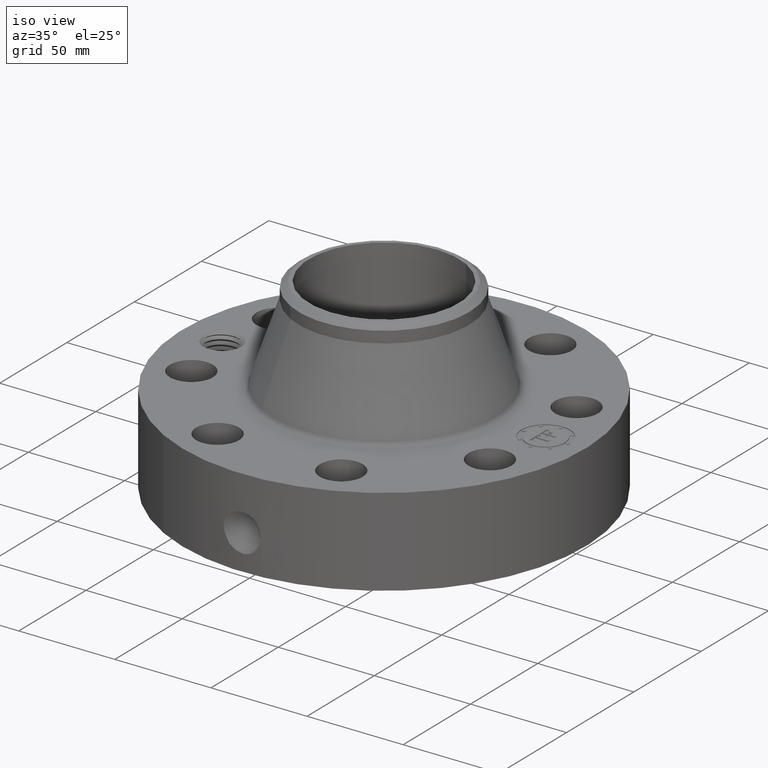
[diagram: clean part render]
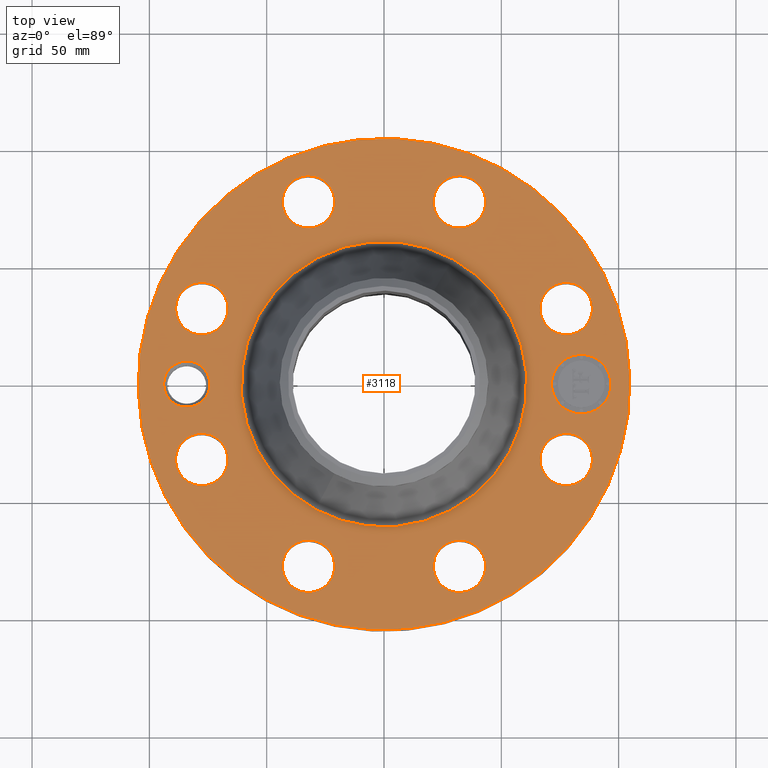
[diagram: tour spotlight — one face highlighted and labeled with its STEP entity id]
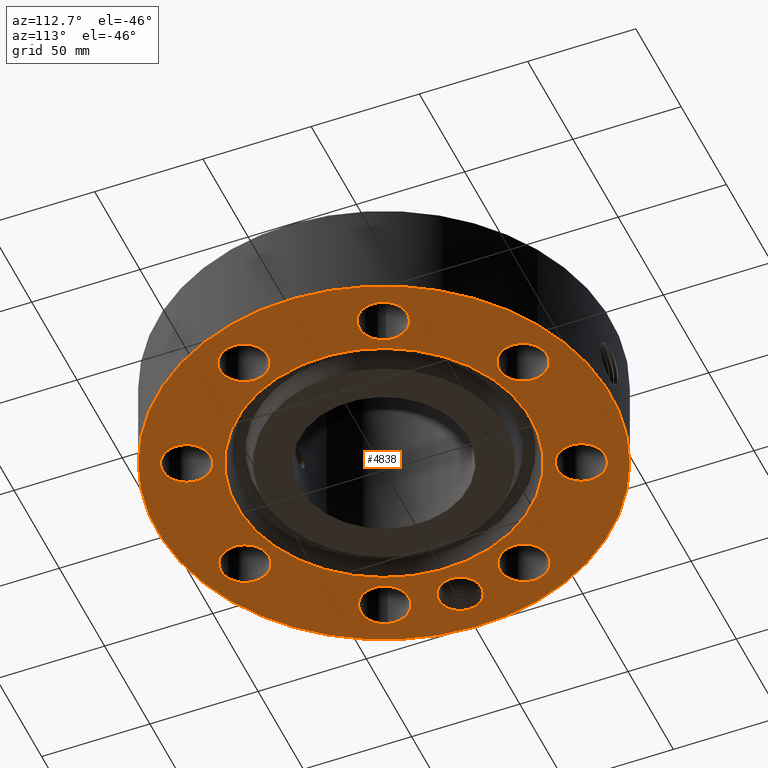
[diagram: tour spotlight — one face highlighted and labeled with its STEP entity id]
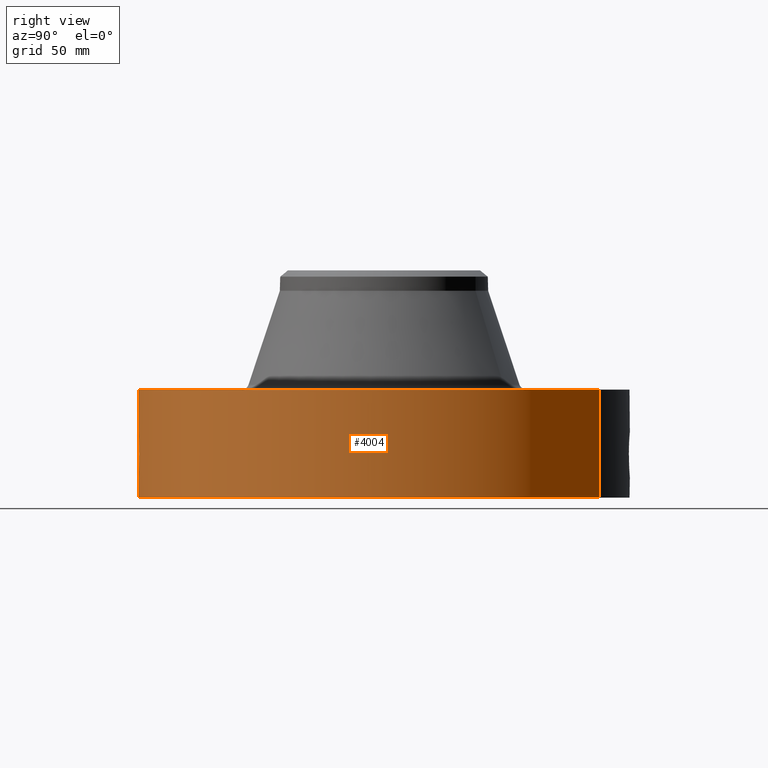
[diagram: tour spotlight — one face highlighted and labeled with its STEP entity id]
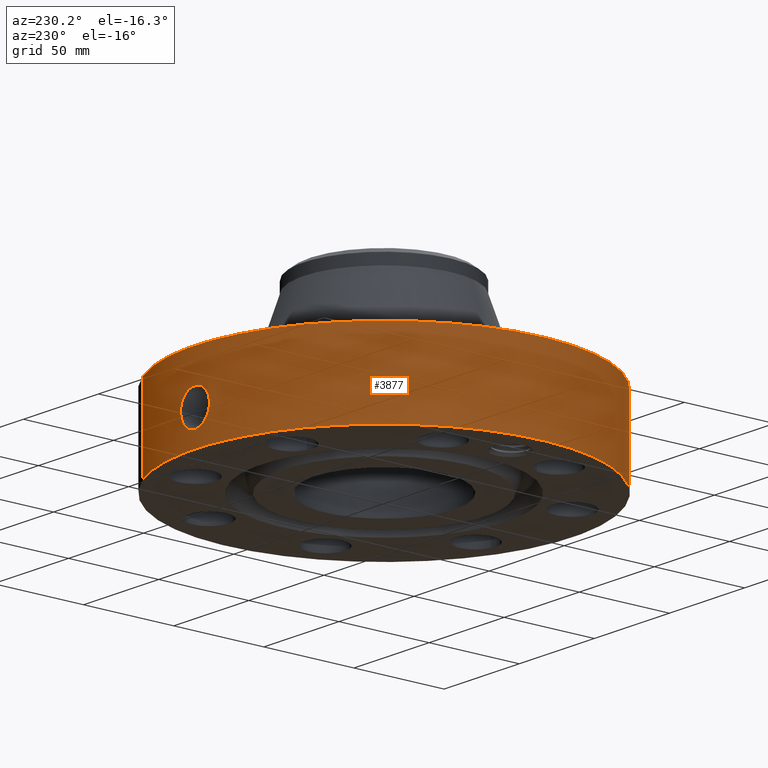
[diagram: tour spotlight — one face highlighted and labeled with its STEP entity id]
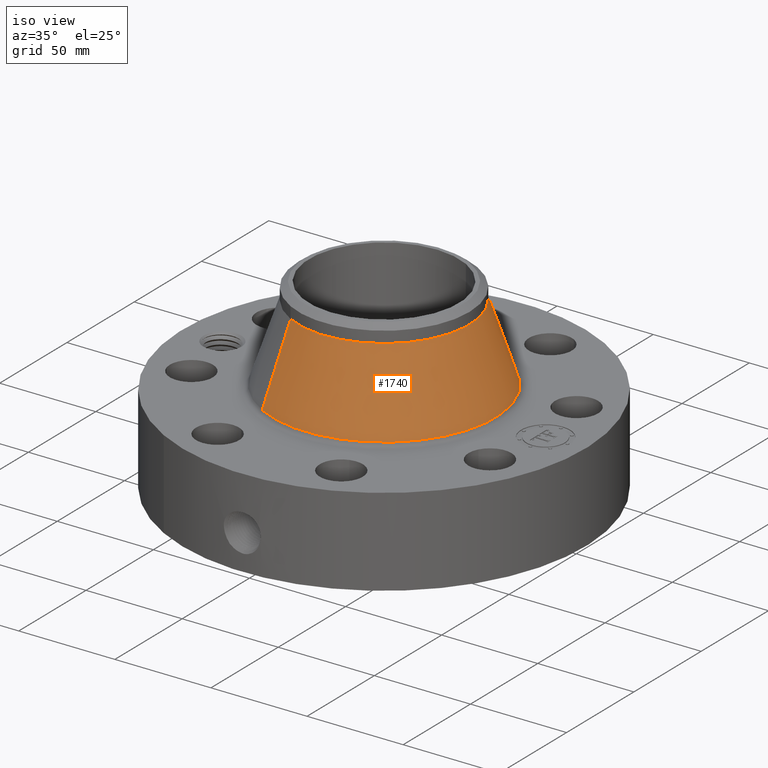
[diagram: tour spotlight — one face highlighted and labeled with its STEP entity id]
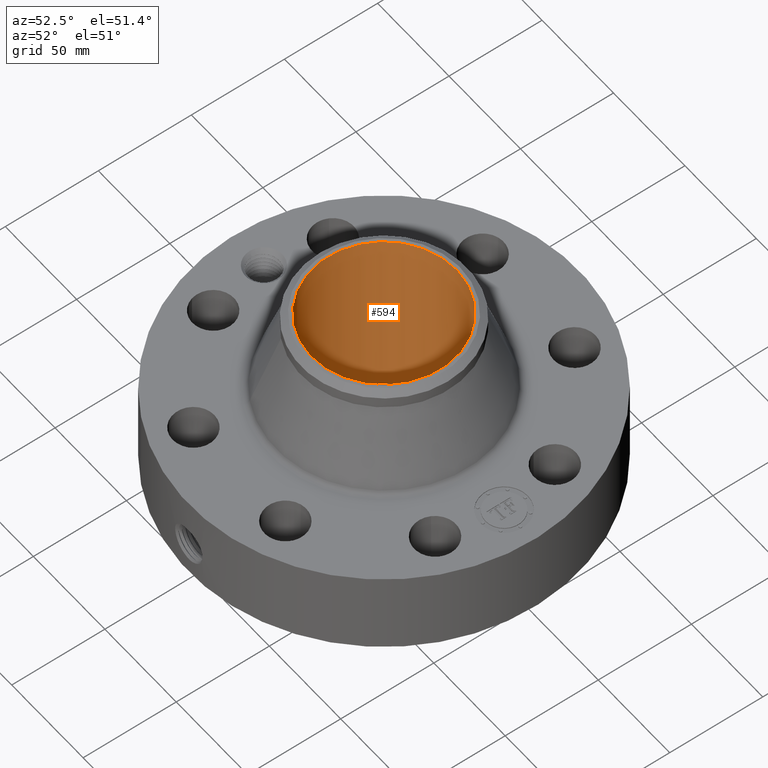
[diagram: tour spotlight — one face highlighted and labeled with its STEP entity id]
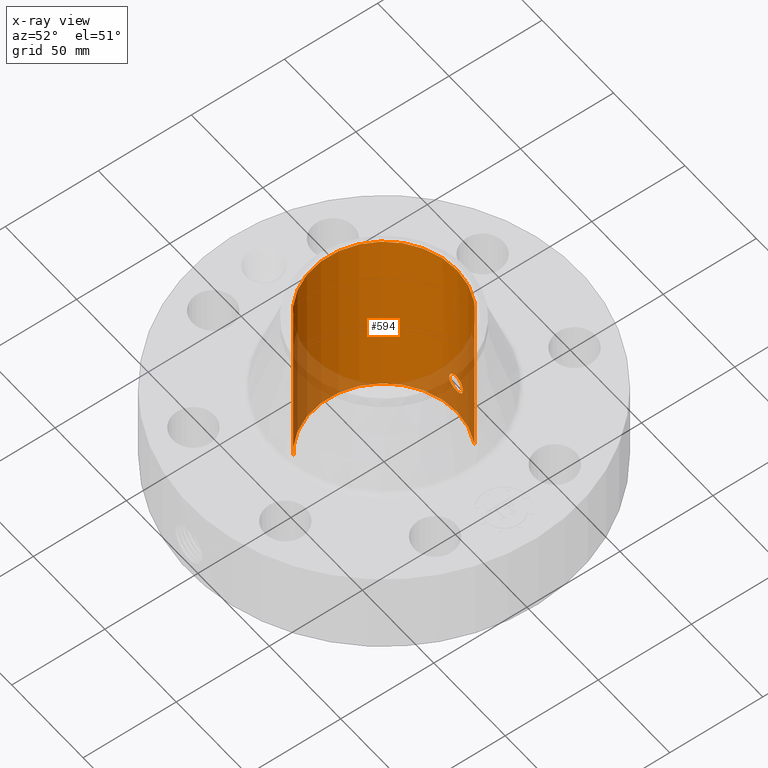
[diagram: x-ray of the same camera — body ghosted, this tour face saturated]
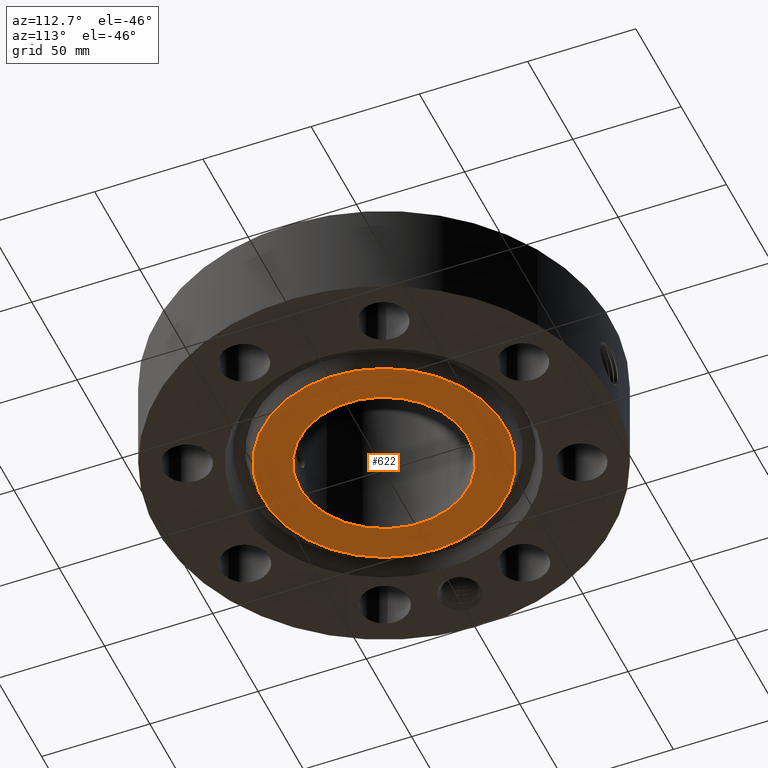
[diagram: tour spotlight — one face highlighted and labeled with its STEP entity id]
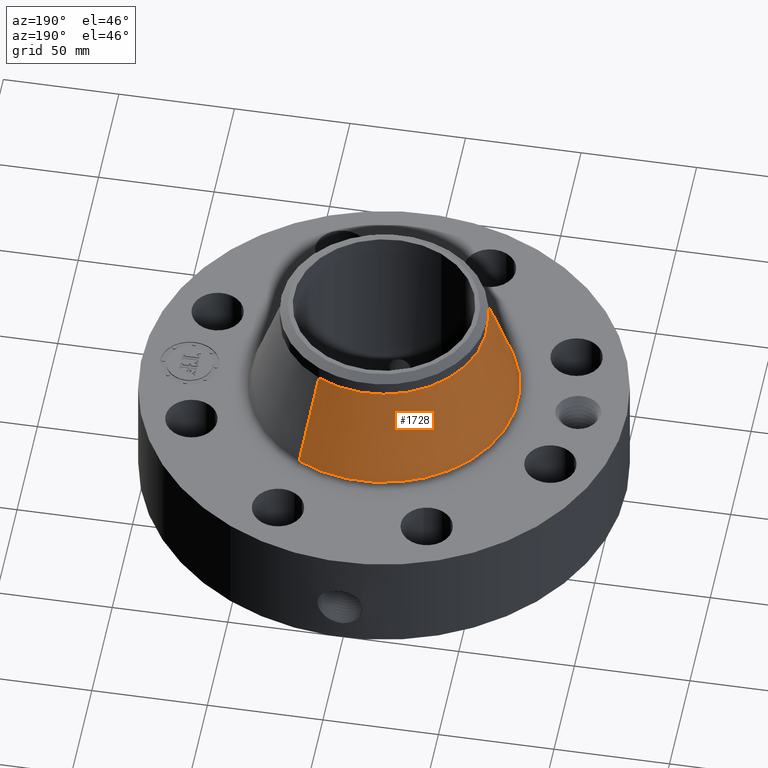
[diagram: tour spotlight — one face highlighted and labeled with its STEP entity id]
A machine part: a face-by-face anatomy tour. The part has 795 B-rep faces; the first image is the clean iso view, then the 8 largest visible faces are spotlighted one at a time (largest first), each with its STEP entity span.

Face 1 — top view, entity #3118. In plain terms, the highlighted planar face has unit normal (0, 0, -1).
Definition (entity closure, byte-faithful):
#2190=AXIS2_PLACEMENT_3D('Circle Axis2P3D',#2188,#2189,$) ;
#2216=AXIS2_PLACEMENT_3D('Circle Axis2P3D',#2214,#2215,$) ;
#2914=AXIS2_PLACEMENT_3D('Plane Axis2P3D',#2911,#2912,#2913) ;
#2918=AXIS2_PLACEMENT_3D('Circle Axis2P3D',#2916,#2917,$) ;
#2927=AXIS2_PLACEMENT_3D('Circle Axis2P3D',#2925,#2926,$) ;
#2936=AXIS2_PLACEMENT_3D('Circle Axis2P3D',#2934,#2935,$) ;
#2945=AXIS2_PLACEMENT_3D('Circle Axis2P3D',#2943,#2944,$) ;
#2954=AXIS2_PLACEMENT_3D('Circle Axis2P3D',#2952,#2953,$) ;
#2963=AXIS2_PLACEMENT_3D('Circle Axis2P3D',#2961,#2962,$) ;
#2976=AXIS2_PLACEMENT_3D('Circle Axis2P3D',#2974,#2975,$) ;
#2985=AXIS2_PLACEMENT_3D('Circle Axis2P3D',#2983,#2984,$) ;
#2994=AXIS2_PLACEMENT_3D('Circle Axis2P3D',#2992,#2993,$) ;
#3003=AXIS2_PLACEMENT_3D('Circle Axis2P3D',#3001,#3002,$) ;
#3012=AXIS2_PLACEMENT_3D('Circle Axis2P3D',#3010,#3011,$) ;
#3021=AXIS2_PLACEMENT_3D('Circle Axis2P3D',#3019,#3020,$) ;
#3030=AXIS2_PLACEMENT_3D('Circle Axis2P3D',#3028,#3029,$) ;
#3039=AXIS2_PLACEMENT_3D('Circle Axis2P3D',#3037,#3038,$) ;
#3048=AXIS2_PLACEMENT_3D('Circle Axis2P3D',#3046,#3047,$) ;
#3057=AXIS2_PLACEMENT_3D('Circle Axis2P3D',#3055,#3056,$) ;
#3066=AXIS2_PLACEMENT_3D('Circle Axis2P3D',#3064,#3065,$) ;
#3075=AXIS2_PLACEMENT_3D('Circle Axis2P3D',#3073,#3074,$) ;
#3084=AXIS2_PLACEMENT_3D('Circle Axis2P3D',#3082,#3083,$) ;
#3093=AXIS2_PLACEMENT_3D('Circle Axis2P3D',#3091,#3092,$) ;
#3102=AXIS2_PLACEMENT_3D('Circle Axis2P3D',#3100,#3101,$) ;
#3111=AXIS2_PLACEMENT_3D('Circle Axis2P3D',#3109,#3110,$) ;
#2188=CARTESIAN_POINT('Axis2P3D Location',(0.,0.,1.81200000001)) ;
#2192=CARTESIAN_POINT('Vertex',(-1.14876916276,-2.10280784752,1.81200000001)) ;
#2194=CARTESIAN_POINT('Vertex',(1.14876916276,2.10280784752,1.81200000001)) ;
#2214=CARTESIAN_POINT('Axis2P3D Location',(0.,0.,1.81200000001)) ;
#2911=CARTESIAN_POINT('Axis2P3D Location',(0.,4.12500000002,1.81200000001)) ;
#2916=CARTESIAN_POINT('Axis2P3D Location',(0.,0.,1.81200000001)) ;
#2920=CARTESIAN_POINT('Vertex',(1.97763034675,3.62002806781,1.81200000001)) ;
#2922=CARTESIAN_POINT('Vertex',(-1.97763034675,-3.62002806781,1.81200000001)) ;
#2925=CARTESIAN_POINT('Axis2P3D Location',(0.,0.,1.81200000001)) ;
#2934=CARTESIAN_POINT('Axis2P3D Location',(-3.31000000001,2.79741234551E-015,1.81200000001)) ;
#2938=CARTESIAN_POINT('Vertex',(-3.65063367141,0.18608902281,1.81200000001)) ;
#2940=CARTESIAN_POINT('Vertex',(-2.96936632861,-0.18608902281,1.81200000001)) ;
#2943=CARTESIAN_POINT('Axis2P3D Location',(-3.31000000001,2.79741234551E-015,1.81200000001)) ;
#2952=CARTESIAN_POINT('Axis2P3D Location',(3.05804125262,-1.26668216113,1.81200000001)) ;
#2956=CARTESIAN_POINT('Vertex',(2.67190492539,-1.05573492415,1.81200000001)) ;
#2958=CARTESIAN_POINT('Vertex',(3.44417757986,-1.47762939812,1.81200000001)) ;
#2961=CARTESIAN_POINT('Axis2P3D Location',(3.05804125262,-1.26668216113,1.81200000001)) ;
#2974=CARTESIAN_POINT('Axis2P3D Location',(1.26668216113,-3.05804125262,1.81200000001)) ;
#2978=CARTESIAN_POINT('Vertex',(1.39055955484,-3.48024308982,1.81200000001)) ;
#2980=CARTESIAN_POINT('Vertex',(1.14280476743,-2.63583941543,1.81200000001)) ;
#2983=CARTESIAN_POINT('Axis2P3D Location',(1.26668216113,-3.05804125262,1.81200000001)) ;
#2992=CARTESIAN_POINT('Axis2P3D Location',(-1.26668216113,-3.05804125262,1.81200000001)) ;
#2996=CARTESIAN_POINT('Vertex',(-1.47762939812,-3.44417757986,1.81200000001)) ;
#2998=CARTESIAN_POINT('Vertex',(-1.05573492415,-2.67190492539,1.81200000001)) ;
#3001=CARTESIAN_POINT('Axis2P3D Location',(-1.26668216113,-3.05804125262,1.81200000001)) ;
#3010=CARTESIAN_POINT('Axis2P3D Location',(-3.05804125262,-1.26668216113,1.81200000001)) ;
#3014=CARTESIAN_POINT('Vertex',(-3.48024308982,-1.39055955484,1.81200000001)) ;
#3016=CARTESIAN_POINT('Vertex',(-2.63583941543,-1.14280476743,1.81200000001)) ;
#3019=CARTESIAN_POINT('Axis2P3D Location',(-3.05804125262,-1.26668216113,1.81200000001)) ;
#3028=CARTESIAN_POINT('Axis2P3D Location',(-3.05804125262,1.26668216113,1.81200000001)) ;
#3032=CARTESIAN_POINT('Vertex',(-3.44417757986,1.47762939812,1.81200000001)) ;
#3034=CARTESIAN_POINT('Vertex',(-2.67190492539,1.05573492415,1.81200000001)) ;
#3037=CARTESIAN_POINT('Axis2P3D Location',(-3.05804125262,1.26668216113,1.81200000001)) ;
#3046=CARTESIAN_POINT('Axis2P3D Location',(-1.26668216113,3.05804125262,1.81200000001)) ;
#3050=CARTESIAN_POINT('Vertex',(-1.39055955484,3.48024308982,1.81200000001)) ;
#3052=CARTESIAN_POINT('Vertex',(-1.14280476743,2.63583941543,1.81200000001)) ;
#3055=CARTESIAN_POINT('Axis2P3D Location',(-1.26668216113,3.05804125262,1.81200000001)) ;
#3064=CARTESIAN_POINT('Axis2P3D Location',(1.26668216113,3.05804125262,1.81200000001)) ;
#3068=CARTESIAN_POINT('Vertex',(1.47762939812,3.44417757986,1.81200000001)) ;
#3070=CARTESIAN_POINT('Vertex',(1.05573492415,2.67190492539,1.81200000001)) ;
#3073=CARTESIAN_POINT('Axis2P3D Location',(1.26668216113,3.05804125262,1.81200000001)) ;
#3082=CARTESIAN_POINT('Axis2P3D Location',(3.05804125262,1.26668216113,1.81200000001)) ;
#3086=CARTESIAN_POINT('Vertex',(3.48024308982,1.39055955484,1.81200000001)) ;
#3088=CARTESIAN_POINT('Vertex',(2.63583941543,1.14280476743,1.81200000001)) ;
#3091=CARTESIAN_POINT('Axis2P3D Location',(3.05804125262,1.26668216113,1.81200000001)) ;
#3100=CARTESIAN_POINT('Axis2P3D Location',(3.31000000001,-7.27327209833E-015,1.81200000001)) ;
#3104=CARTESIAN_POINT('Vertex',(3.31000000001,0.499999995002,1.81200000001)) ;
#3106=CARTESIAN_POINT('Vertex',(3.31000000001,-0.499999995002,1.81200000001)) ;
#3109=CARTESIAN_POINT('Axis2P3D Location',(3.31000000001,-7.83275456743E-015,1.81200000001)) ;
#2189=DIRECTION('Axis2P3D Direction',(0.,0.,-0.0393700787402)) ;
#2215=DIRECTION('Axis2P3D Direction',(0.,0.,-0.0393700787402)) ;
#2912=DIRECTION('Axis2P3D Direction',(0.,0.,-0.0393700787402)) ;
#2913=DIRECTION('Axis2P3D XDirection',(0.0393700787402,0.,0.)) ;
#2917=DIRECTION('Axis2P3D Direction',(0.,0.,-0.0393700787402)) ;
#2926=DIRECTION('Axis2P3D Direction',(0.,0.,-0.0393700787402)) ;
#2935=DIRECTION('Axis2P3D Direction',(0.,0.,-0.0393700787402)) ;
#2944=DIRECTION('Axis2P3D Direction',(0.,0.,-0.0393700787402)) ;
#2953=DIRECTION('Axis2P3D Direction',(0.,0.,-0.0393700787402)) ;
#2962=DIRECTION('Axis2P3D Direction',(0.,0.,-0.0393700787402)) ;
#2975=DIRECTION('Axis2P3D Direction',(0.,0.,-0.0393700787402)) ;
#2984=DIRECTION('Axis2P3D Direction',(0.,0.,-0.0393700787402)) ;
#2993=DIRECTION('Axis2P3D Direction',(0.,0.,-0.0393700787402)) ;
#3002=DIRECTION('Axis2P3D Direction',(0.,0.,-0.0393700787402)) ;
#3011=DIRECTION('Axis2P3D Direction',(0.,0.,-0.0393700787402)) ;
#3020=DIRECTION('Axis2P3D Direction',(0.,0.,-0.0393700787402)) ;
#3029=DIRECTION('Axis2P3D Direction',(0.,0.,-0.0393700787402)) ;
#3038=DIRECTION('Axis2P3D Direction',(0.,0.,-0.0393700787402)) ;
#3047=DIRECTION('Axis2P3D Direction',(0.,0.,-0.0393700787402)) ;
#3056=DIRECTION('Axis2P3D Direction',(0.,0.,-0.0393700787402)) ;
#3065=DIRECTION('Axis2P3D Direction',(0.,0.,-0.0393700787402)) ;
#3074=DIRECTION('Axis2P3D Direction',(0.,0.,-0.0393700787402)) ;
#3083=DIRECTION('Axis2P3D Direction',(0.,0.,-0.0393700787402)) ;
#3092=DIRECTION('Axis2P3D Direction',(0.,0.,-0.0393700787402)) ;
#3101=DIRECTION('Axis2P3D Direction',(0.,0.,-0.0393700787402)) ;
#3110=DIRECTION('Axis2P3D Direction',(0.,0.,-0.0393700787402)) ;
#2931=ORIENTED_EDGE('',*,*,#2924,.F.) ;
#2932=ORIENTED_EDGE('',*,*,#2929,.F.) ;
#2949=ORIENTED_EDGE('',*,*,#2942,.T.) ;
#2950=ORIENTED_EDGE('',*,*,#2947,.T.) ;
#2967=ORIENTED_EDGE('',*,*,#2960,.T.) ;
#2968=ORIENTED_EDGE('',*,*,#2965,.T.) ;
#2971=ORIENTED_EDGE('',*,*,#2196,.T.) ;
#2972=ORIENTED_EDGE('',*,*,#2218,.T.) ;
#2989=ORIENTED_EDGE('',*,*,#2982,.T.) ;
#2990=ORIENTED_EDGE('',*,*,#2987,.T.) ;
#3007=ORIENTED_EDGE('',*,*,#3000,.T.) ;
#3008=ORIENTED_EDGE('',*,*,#3005,.T.) ;
#3025=ORIENTED_EDGE('',*,*,#3018,.T.) ;
#3026=ORIENTED_EDGE('',*,*,#3023,.T.) ;
#3043=ORIENTED_EDGE('',*,*,#3036,.T.) ;
#3044=ORIENTED_EDGE('',*,*,#3041,.T.) ;
#3061=ORIENTED_EDGE('',*,*,#3054,.T.) ;
#3062=ORIENTED_EDGE('',*,*,#3059,.T.) ;
#3079=ORIENTED_EDGE('',*,*,#3072,.T.) ;
#3080=ORIENTED_EDGE('',*,*,#3077,.T.) ;
#3097=ORIENTED_EDGE('',*,*,#3090,.T.) ;
#3098=ORIENTED_EDGE('',*,*,#3095,.T.) ;
#3115=ORIENTED_EDGE('',*,*,#3108,.T.) ;
#3116=ORIENTED_EDGE('',*,*,#3113,.T.) ;
#2951=FACE_BOUND('',#2948,.T.) ;
#2969=FACE_BOUND('',#2966,.T.) ;
#2973=FACE_BOUND('',#2970,.T.) ;
#2991=FACE_BOUND('',#2988,.T.) ;
#3009=FACE_BOUND('',#3006,.T.) ;
#3027=FACE_BOUND('',#3024,.T.) ;
#3045=FACE_BOUND('',#3042,.T.) ;
#3063=FACE_BOUND('',#3060,.T.) ;
#3081=FACE_BOUND('',#3078,.T.) ;
#3099=FACE_BOUND('',#3096,.T.) ;
#3117=FACE_BOUND('',#3114,.T.) ;
#3118=ADVANCED_FACE('PartBody',(#2933,#2951,#2969,#2973,#2991,#3009,#3027,#3045,#3063,#3081,#3099,#3117),#2915,.F.) ;
#2191=CIRCLE('generated circle',#2190,2.39613677258) ;
#2217=CIRCLE('generated circle',#2216,2.39613677258) ;
#2919=CIRCLE('generated circle',#2918,4.12500000002) ;
#2928=CIRCLE('generated circle',#2927,4.12500000002) ;
#2937=CIRCLE('generated circle',#2936,0.388150000002) ;
#2946=CIRCLE('generated circle',#2945,0.388150000002) ;
#2955=CIRCLE('generated circle',#2954,0.440000000002) ;
#2964=CIRCLE('generated circle',#2963,0.440000000002) ;
#2977=CIRCLE('generated circle',#2976,0.440000000002) ;
#2986=CIRCLE('generated circle',#2985,0.440000000002) ;
#2995=CIRCLE('generated circle',#2994,0.440000000002) ;
#3004=CIRCLE('generated circle',#3003,0.440000000002) ;
#3013=CIRCLE('generated circle',#3012,0.440000000002) ;
#3022=CIRCLE('generated circle',#3021,0.440000000002) ;
#3031=CIRCLE('generated circle',#3030,0.440000000002) ;
#3040=CIRCLE('generated circle',#3039,0.440000000002) ;
#3049=CIRCLE('generated circle',#3048,0.440000000002) ;
#3058=CIRCLE('generated circle',#3057,0.440000000002) ;
#3067=CIRCLE('generated circle',#3066,0.440000000002) ;
#3076=CIRCLE('generated circle',#3075,0.440000000002) ;
#3085=CIRCLE('generated circle',#3084,0.440000000002) ;
#3094=CIRCLE('generated circle',#3093,0.440000000002) ;
#3103=CIRCLE('generated circle',#3102,0.499999995002) ;
#3112=CIRCLE('generated circle',#3111,0.499999995002) ;
#2196=EDGE_CURVE('',#2193,#2195,#2191,.T.) ;
#2218=EDGE_CURVE('',#2195,#2193,#2217,.T.) ;
#2924=EDGE_CURVE('',#2921,#2923,#2919,.T.) ;
#2929=EDGE_CURVE('',#2923,#2921,#2928,.T.) ;
#2942=EDGE_CURVE('',#2939,#2941,#2937,.T.) ;
#2947=EDGE_CURVE('',#2941,#2939,#2946,.T.) ;
#2960=EDGE_CURVE('',#2957,#2959,#2955,.T.) ;
#2965=EDGE_CURVE('',#2959,#2957,#2964,.T.) ;
#2982=EDGE_CURVE('',#2979,#2981,#2977,.T.) ;
#2987=EDGE_CURVE('',#2981,#2979,#2986,.T.) ;
#3000=EDGE_CURVE('',#2997,#2999,#2995,.T.) ;
#3005=EDGE_CURVE('',#2999,#2997,#3004,.T.) ;
#3018=EDGE_CURVE('',#3015,#3017,#3013,.T.) ;
#3023=EDGE_CURVE('',#3017,#3015,#3022,.T.) ;
#3036=EDGE_CURVE('',#3033,#3035,#3031,.T.) ;
#3041=EDGE_CURVE('',#3035,#3033,#3040,.T.) ;
#3054=EDGE_CURVE('',#3051,#3053,#3049,.T.) ;
#3059=EDGE_CURVE('',#3053,#3051,#3058,.T.) ;
#3072=EDGE_CURVE('',#3069,#3071,#3067,.T.) ;
#3077=EDGE_CURVE('',#3071,#3069,#3076,.T.) ;
#3090=EDGE_CURVE('',#3087,#3089,#3085,.T.) ;
#3095=EDGE_CURVE('',#3089,#3087,#3094,.T.) ;
#3108=EDGE_CURVE('',#3105,#3107,#3103,.T.) ;
#3113=EDGE_CURVE('',#3107,#3105,#3112,.T.) ;
#2930=EDGE_LOOP('',(#2931,#2932)) ;
#2948=EDGE_LOOP('',(#2949,#2950)) ;
#2966=EDGE_LOOP('',(#2967,#2968)) ;
#2970=EDGE_LOOP('',(#2971,#2972)) ;
#2988=EDGE_LOOP('',(#2989,#2990)) ;
#3006=EDGE_LOOP('',(#3007,#3008)) ;
#3024=EDGE_LOOP('',(#3025,#3026)) ;
#3042=EDGE_LOOP('',(#3043,#3044)) ;
#3060=EDGE_LOOP('',(#3061,#3062)) ;
#3078=EDGE_LOOP('',(#3079,#3080)) ;
#3096=EDGE_LOOP('',(#3097,#3098)) ;
#3114=EDGE_LOOP('',(#3115,#3116)) ;
#2933=FACE_OUTER_BOUND('',#2930,.T.) ;
#2915=PLANE('',#2914) ;
#2193=VERTEX_POINT('',#2192) ;
#2195=VERTEX_POINT('',#2194) ;
#2921=VERTEX_POINT('',#2920) ;
#2923=VERTEX_POINT('',#2922) ;
#2939=VERTEX_POINT('',#2938) ;
#2941=VERTEX_POINT('',#2940) ;
#2957=VERTEX_POINT('',#2956) ;
#2959=VERTEX_POINT('',#2958) ;
#2979=VERTEX_POINT('',#2978) ;
#2981=VERTEX_POINT('',#2980) ;
#2997=VERTEX_POINT('',#2996) ;
#2999=VERTEX_POINT('',#2998) ;
#3015=VERTEX_POINT('',#3014) ;
#3017=VERTEX_POINT('',#3016) ;
#3033=VERTEX_POINT('',#3032) ;
#3035=VERTEX_POINT('',#3034) ;
#3051=VERTEX_POINT('',#3050) ;
#3053=VERTEX_POINT('',#3052) ;
#3069=VERTEX_POINT('',#3068) ;
#3071=VERTEX_POINT('',#3070) ;
#3087=VERTEX_POINT('',#3086) ;
#3089=VERTEX_POINT('',#3088) ;
#3105=VERTEX_POINT('',#3104) ;
#3107=VERTEX_POINT('',#3106) ;

Face 2 — auxiliary view, entity #4838. In plain terms, the highlighted planar face has unit normal (0, 0, -1).
Definition (entity closure, byte-faithful):
#598=AXIS2_PLACEMENT_3D('Plane Axis2P3D',#595,#596,#597) ;
#3440=AXIS2_PLACEMENT_3D('Circle Axis2P3D',#3438,#3439,$) ;
#3466=AXIS2_PLACEMENT_3D('Circle Axis2P3D',#3464,#3465,$) ;
#3739=AXIS2_PLACEMENT_3D('Circle Axis2P3D',#3737,#3738,$) ;
#3880=AXIS2_PLACEMENT_3D('Circle Axis2P3D',#3878,#3879,$) ;
#4155=AXIS2_PLACEMENT_3D('Circle Axis2P3D',#4153,#4154,$) ;
#4174=AXIS2_PLACEMENT_3D('Circle Axis2P3D',#4172,#4173,$) ;
#4198=AXIS2_PLACEMENT_3D('Circle Axis2P3D',#4196,#4197,$) ;
#4217=AXIS2_PLACEMENT_3D('Circle Axis2P3D',#4215,#4216,$) ;
#4241=AXIS2_PLACEMENT_3D('Circle Axis2P3D',#4239,#4240,$) ;
#4260=AXIS2_PLACEMENT_3D('Circle Axis2P3D',#4258,#4259,$) ;
#4284=AXIS2_PLACEMENT_3D('Circle Axis2P3D',#4282,#4283,$) ;
#4303=AXIS2_PLACEMENT_3D('Circle Axis2P3D',#4301,#4302,$) ;
#4327=AXIS2_PLACEMENT_3D('Circle Axis2P3D',#4325,#4326,$) ;
#4346=AXIS2_PLACEMENT_3D('Circle Axis2P3D',#4344,#4345,$) ;
#4370=AXIS2_PLACEMENT_3D('Circle Axis2P3D',#4368,#4369,$) ;
#4389=AXIS2_PLACEMENT_3D('Circle Axis2P3D',#4387,#4388,$) ;
#4413=AXIS2_PLACEMENT_3D('Circle Axis2P3D',#4411,#4412,$) ;
#4432=AXIS2_PLACEMENT_3D('Circle Axis2P3D',#4430,#4431,$) ;
#4456=AXIS2_PLACEMENT_3D('Circle Axis2P3D',#4454,#4455,$) ;
#4475=AXIS2_PLACEMENT_3D('Circle Axis2P3D',#4473,#4474,$) ;
#4786=AXIS2_PLACEMENT_3D('Circle Axis2P3D',#4784,#4785,$) ;
#4795=AXIS2_PLACEMENT_3D('Circle Axis2P3D',#4793,#4794,$) ;
#595=CARTESIAN_POINT('Axis2P3D Location',(0.,1.53400000001,0.)) ;
#3438=CARTESIAN_POINT('Axis2P3D Location',(0.,0.,3.49676543189E-017)) ;
#3442=CARTESIAN_POINT('Vertex',(-1.28102503916,2.34490060538,3.49676543189E-017)) ;
#3444=CARTESIAN_POINT('Vertex',(1.28102503916,-2.34490060538,-3.49676543189E-016)) ;
#3464=CARTESIAN_POINT('Axis2P3D Location',(0.,0.,3.49676543189E-017)) ;
#3737=CARTESIAN_POINT('Axis2P3D Location',(0.,0.,2.79741234551E-016)) ;
#3741=CARTESIAN_POINT('Vertex',(-1.97763034675,-3.62002806781,2.79741234551E-016)) ;
#3743=CARTESIAN_POINT('Vertex',(1.97763034675,3.62002806781,2.79741234551E-016)) ;
#3878=CARTESIAN_POINT('Axis2P3D Location',(0.,0.,2.79741234551E-016)) ;
#4150=CARTESIAN_POINT('Vertex',(3.44417757986,-1.47762939812,0.)) ;
#4153=CARTESIAN_POINT('Axis2P3D Location',(3.05804125262,-1.26668216113,0.)) ;
#4157=CARTESIAN_POINT('Vertex',(2.67190492539,-1.05573492415,0.)) ;
#4172=CARTESIAN_POINT('Axis2P3D Location',(3.05804125262,-1.26668216113,0.)) ;
#4193=CARTESIAN_POINT('Vertex',(1.14280476743,-2.63583941543,0.)) ;
#4196=CARTESIAN_POINT('Axis2P3D Location',(1.26668216113,-3.05804125262,0.)) ;
#4200=CARTESIAN_POINT('Vertex',(1.39055955484,-3.48024308982,0.)) ;
#4215=CARTESIAN_POINT('Axis2P3D Location',(1.26668216113,-3.05804125262,0.)) ;
#4236=CARTESIAN_POINT('Vertex',(-1.05573492415,-2.67190492539,0.)) ;
#4239=CARTESIAN_POINT('Axis2P3D Location',(-1.26668216113,-3.05804125262,0.)) ;
#4243=CARTESIAN_POINT('Vertex',(-1.47762939812,-3.44417757986,0.)) ;
#4258=CARTESIAN_POINT('Axis2P3D Location',(-1.26668216113,-3.05804125262,0.)) ;
#4279=CARTESIAN_POINT('Vertex',(-2.63583941543,-1.14280476743,0.)) ;
#4282=CARTESIAN_POINT('Axis2P3D Location',(-3.05804125262,-1.26668216113,0.)) ;
#4286=CARTESIAN_POINT('Vertex',(-3.48024308982,-1.39055955484,0.)) ;
#4301=CARTESIAN_POINT('Axis2P3D Location',(-3.05804125262,-1.26668216113,0.)) ;
#4322=CARTESIAN_POINT('Vertex',(-2.67190492539,1.05573492415,0.)) ;
#4325=CARTESIAN_POINT('Axis2P3D Location',(-3.05804125262,1.26668216113,0.)) ;
#4329=CARTESIAN_POINT('Vertex',(-3.44417757986,1.47762939812,0.)) ;
#4344=CARTESIAN_POINT('Axis2P3D Location',(-3.05804125262,1.26668216113,0.)) ;
#4365=CARTESIAN_POINT('Vertex',(-1.14280476743,2.63583941543,0.)) ;
#4368=CARTESIAN_POINT('Axis2P3D Location',(-1.26668216113,3.05804125262,0.)) ;
#4372=CARTESIAN_POINT('Vertex',(-1.39055955484,3.48024308982,0.)) ;
#4387=CARTESIAN_POINT('Axis2P3D Location',(-1.26668216113,3.05804125262,0.)) ;
#4408=CARTESIAN_POINT('Vertex',(1.05573492415,2.67190492539,0.)) ;
#4411=CARTESIAN_POINT('Axis2P3D Location',(1.26668216113,3.05804125262,0.)) ;
#4415=CARTESIAN_POINT('Vertex',(1.47762939812,3.44417757986,0.)) ;
#4430=CARTESIAN_POINT('Axis2P3D Location',(1.26668216113,3.05804125262,0.)) ;
#4451=CARTESIAN_POINT('Vertex',(2.63583941543,1.14280476743,0.)) ;
#4454=CARTESIAN_POINT('Axis2P3D Location',(3.05804125262,1.26668216113,0.)) ;
#4458=CARTESIAN_POINT('Vertex',(3.48024308982,1.39055955484,0.)) ;
#4473=CARTESIAN_POINT('Axis2P3D Location',(3.05804125262,1.26668216113,0.)) ;
#4784=CARTESIAN_POINT('Axis2P3D Location',(-3.31000000001,5.59482469102E-016,0.)) ;
#4788=CARTESIAN_POINT('Vertex',(-2.96936632861,-0.18608902281,0.)) ;
#4790=CARTESIAN_POINT('Vertex',(-3.65063367141,0.18608902281,0.)) ;
#4793=CARTESIAN_POINT('Axis2P3D Location',(-3.31000000001,5.59482469102E-016,0.)) ;
#596=DIRECTION('Axis2P3D Direction',(0.,0.,-0.0393700787402)) ;
#597=DIRECTION('Axis2P3D XDirection',(0.0393700787402,0.,0.)) ;
#3439=DIRECTION('Axis2P3D Direction',(0.,0.,-0.0393700787402)) ;
#3465=DIRECTION('Axis2P3D Direction',(0.,0.,-0.0393700787402)) ;
#3738=DIRECTION('Axis2P3D Direction',(0.,0.,-0.0393700787402)) ;
#3879=DIRECTION('Axis2P3D Direction',(0.,0.,-0.0393700787402)) ;
#4154=DIRECTION('Axis2P3D Direction',(0.,-0.,-0.0393700787402)) ;
#4173=DIRECTION('Axis2P3D Direction',(0.,-0.,-0.0393700787402)) ;
#4197=DIRECTION('Axis2P3D Direction',(0.,-0.,-0.0393700787402)) ;
#4216=DIRECTION('Axis2P3D Direction',(0.,-0.,-0.0393700787402)) ;
#4240=DIRECTION('Axis2P3D Direction',(0.,-0.,-0.0393700787402)) ;
#4259=DIRECTION('Axis2P3D Direction',(0.,-0.,-0.0393700787402)) ;
#4283=DIRECTION('Axis2P3D Direction',(-0.,0.,-0.0393700787402)) ;
#4302=DIRECTION('Axis2P3D Direction',(-0.,0.,-0.0393700787402)) ;
#4326=DIRECTION('Axis2P3D Direction',(-0.,0.,-0.0393700787402)) ;
#4345=DIRECTION('Axis2P3D Direction',(-0.,0.,-0.0393700787402)) ;
#4369=DIRECTION('Axis2P3D Direction',(0.,0.,-0.0393700787402)) ;
#4388=DIRECTION('Axis2P3D Direction',(0.,0.,-0.0393700787402)) ;
#4412=DIRECTION('Axis2P3D Direction',(0.,0.,-0.0393700787402)) ;
#4431=DIRECTION('Axis2P3D Direction',(0.,0.,-0.0393700787402)) ;
#4455=DIRECTION('Axis2P3D Direction',(0.,0.,-0.0393700787402)) ;
#4474=DIRECTION('Axis2P3D Direction',(0.,0.,-0.0393700787402)) ;
#4785=DIRECTION('Axis2P3D Direction',(0.,0.,-0.0393700787402)) ;
#4794=DIRECTION('Axis2P3D Direction',(0.,0.,-0.0393700787402)) ;
#4781=ORIENTED_EDGE('',*,*,#3745,.T.) ;
#4782=ORIENTED_EDGE('',*,*,#3882,.T.) ;
#4799=ORIENTED_EDGE('',*,*,#4792,.F.) ;
#4800=ORIENTED_EDGE('',*,*,#4797,.F.) ;
#4803=ORIENTED_EDGE('',*,*,#4159,.F.) ;
#4804=ORIENTED_EDGE('',*,*,#4176,.F.) ;
#4807=ORIENTED_EDGE('',*,*,#4202,.F.) ;
#4808=ORIENTED_EDGE('',*,*,#4219,.F.) ;
#4811=ORIENTED_EDGE('',*,*,#4245,.F.) ;
#4812=ORIENTED_EDGE('',*,*,#4262,.F.) ;
#4815=ORIENTED_EDGE('',*,*,#4288,.F.) ;
#4816=ORIENTED_EDGE('',*,*,#4305,.F.) ;
#4819=ORIENTED_EDGE('',*,*,#4331,.F.) ;
#4820=ORIENTED_EDGE('',*,*,#4348,.F.) ;
#4823=ORIENTED_EDGE('',*,*,#4374,.F.) ;
#4824=ORIENTED_EDGE('',*,*,#4391,.F.) ;
#4827=ORIENTED_EDGE('',*,*,#4417,.F.) ;
#4828=ORIENTED_EDGE('',*,*,#4434,.F.) ;
#4831=ORIENTED_EDGE('',*,*,#4460,.F.) ;
#4832=ORIENTED_EDGE('',*,*,#4477,.F.) ;
#4835=ORIENTED_EDGE('',*,*,#3468,.F.) ;
#4836=ORIENTED_EDGE('',*,*,#3446,.F.) ;
#4801=FACE_BOUND('',#4798,.T.) ;
#4805=FACE_BOUND('',#4802,.T.) ;
#4809=FACE_BOUND('',#4806,.T.) ;
#4813=FACE_BOUND('',#4810,.T.) ;
#4817=FACE_BOUND('',#4814,.T.) ;
#4821=FACE_BOUND('',#4818,.T.) ;
#4825=FACE_BOUND('',#4822,.T.) ;
#4829=FACE_BOUND('',#4826,.T.) ;
#4833=FACE_BOUND('',#4830,.T.) ;
#4837=FACE_BOUND('',#4834,.T.) ;
#4838=ADVANCED_FACE('PartBody',(#4783,#4801,#4805,#4809,#4813,#4817,#4821,#4825,#4829,#4833,#4837),#599,.T.) ;
#3441=CIRCLE('generated circle',#3440,2.67200000001) ;
#3467=CIRCLE('generated circle',#3466,2.67200000001) ;
#3740=CIRCLE('generated circle',#3739,4.12500000002) ;
#3881=CIRCLE('generated circle',#3880,4.12500000002) ;
#4156=CIRCLE('generated circle',#4155,0.440000000002) ;
#4175=CIRCLE('generated circle',#4174,0.440000000002) ;
#4199=CIRCLE('generated circle',#4198,0.440000000002) ;
#4218=CIRCLE('generated circle',#4217,0.440000000002) ;
#4242=CIRCLE('generated circle',#4241,0.440000000002) ;
#4261=CIRCLE('generated circle',#4260,0.440000000002) ;
#4285=CIRCLE('generated circle',#4284,0.440000000002) ;
#4304=CIRCLE('generated circle',#4303,0.440000000002) ;
#4328=CIRCLE('generated circle',#4327,0.440000000002) ;
#4347=CIRCLE('generated circle',#4346,0.440000000002) ;
#4371=CIRCLE('generated circle',#4370,0.440000000002) ;
#4390=CIRCLE('generated circle',#4389,0.440000000002) ;
#4414=CIRCLE('generated circle',#4413,0.440000000002) ;
#4433=CIRCLE('generated circle',#4432,0.440000000002) ;
#4457=CIRCLE('generated circle',#4456,0.440000000002) ;
#4476=CIRCLE('generated circle',#4475,0.440000000002) ;
#4787=CIRCLE('generated circle',#4786,0.388150000002) ;
#4796=CIRCLE('generated circle',#4795,0.388150000002) ;
#3446=EDGE_CURVE('',#3443,#3445,#3441,.T.) ;
#3468=EDGE_CURVE('',#3445,#3443,#3467,.T.) ;
#3745=EDGE_CURVE('',#3742,#3744,#3740,.T.) ;
#3882=EDGE_CURVE('',#3744,#3742,#3881,.T.) ;
#4159=EDGE_CURVE('',#4151,#4158,#4156,.T.) ;
#4176=EDGE_CURVE('',#4158,#4151,#4175,.T.) ;
#4202=EDGE_CURVE('',#4194,#4201,#4199,.T.) ;
#4219=EDGE_CURVE('',#4201,#4194,#4218,.T.) ;
#4245=EDGE_CURVE('',#4237,#4244,#4242,.T.) ;
#4262=EDGE_CURVE('',#4244,#4237,#4261,.T.) ;
#4288=EDGE_CURVE('',#4280,#4287,#4285,.T.) ;
#4305=EDGE_CURVE('',#4287,#4280,#4304,.T.) ;
#4331=EDGE_CURVE('',#4323,#4330,#4328,.T.) ;
#4348=EDGE_CURVE('',#4330,#4323,#4347,.T.) ;
#4374=EDGE_CURVE('',#4366,#4373,#4371,.T.) ;
#4391=EDGE_CURVE('',#4373,#4366,#4390,.T.) ;
#4417=EDGE_CURVE('',#4409,#4416,#4414,.T.) ;
#4434=EDGE_CURVE('',#4416,#4409,#4433,.T.) ;
#4460=EDGE_CURVE('',#4452,#4459,#4457,.T.) ;
#4477=EDGE_CURVE('',#4459,#4452,#4476,.T.) ;
#4792=EDGE_CURVE('',#4789,#4791,#4787,.T.) ;
#4797=EDGE_CURVE('',#4791,#4789,#4796,.T.) ;
#4780=EDGE_LOOP('',(#4781,#4782)) ;
#4798=EDGE_LOOP('',(#4799,#4800)) ;
#4802=EDGE_LOOP('',(#4803,#4804)) ;
#4806=EDGE_LOOP('',(#4807,#4808)) ;
#4810=EDGE_LOOP('',(#4811,#4812)) ;
#4814=EDGE_LOOP('',(#4815,#4816)) ;
#4818=EDGE_LOOP('',(#4819,#4820)) ;
#4822=EDGE_LOOP('',(#4823,#4824)) ;
#4826=EDGE_LOOP('',(#4827,#4828)) ;
#4830=EDGE_LOOP('',(#4831,#4832)) ;
#4834=EDGE_LOOP('',(#4835,#4836)) ;
#4783=FACE_OUTER_BOUND('',#4780,.T.) ;
#599=PLANE('',#598) ;
#3443=VERTEX_POINT('',#3442) ;
#3445=VERTEX_POINT('',#3444) ;
#3742=VERTEX_POINT('',#3741) ;
#3744=VERTEX_POINT('',#3743) ;
#4151=VERTEX_POINT('',#4150) ;
#4158=VERTEX_POINT('',#4157) ;
#4194=VERTEX_POINT('',#4193) ;
#4201=VERTEX_POINT('',#4200) ;
#4237=VERTEX_POINT('',#4236) ;
#4244=VERTEX_POINT('',#4243) ;
#4280=VERTEX_POINT('',#4279) ;
#4287=VERTEX_POINT('',#4286) ;
#4323=VERTEX_POINT('',#4322) ;
#4330=VERTEX_POINT('',#4329) ;
#4366=VERTEX_POINT('',#4365) ;
#4373=VERTEX_POINT('',#4372) ;
#4409=VERTEX_POINT('',#4408) ;
#4416=VERTEX_POINT('',#4415) ;
#4452=VERTEX_POINT('',#4451) ;
#4459=VERTEX_POINT('',#4458) ;
#4789=VERTEX_POINT('',#4788) ;
#4791=VERTEX_POINT('',#4790) ;

Face 3 — right view, entity #4004. In plain terms, the highlighted cylindrical surface (partial cylindrical patch) has radius 104.775 mm, axis along (0, 0, -1).
Definition (entity closure, byte-faithful):
#2918=AXIS2_PLACEMENT_3D('Circle Axis2P3D',#2916,#2917,$) ;
#3735=AXIS2_PLACEMENT_3D('Cylinder Axis2P3D',#3732,#3733,#3734) ;
#3880=AXIS2_PLACEMENT_3D('Circle Axis2P3D',#3878,#3879,$) ;
#2916=CARTESIAN_POINT('Axis2P3D Location',(0.,0.,1.81200000001)) ;
#2920=CARTESIAN_POINT('Vertex',(1.97763034675,3.62002806781,1.81200000001)) ;
#2922=CARTESIAN_POINT('Vertex',(-1.97763034675,-3.62002806781,1.81200000001)) ;
#3732=CARTESIAN_POINT('Axis2P3D Location',(0.,0.,1.90600000001)) ;
#3741=CARTESIAN_POINT('Vertex',(-1.97763034675,-3.62002806781,2.79741234551E-016)) ;
#3743=CARTESIAN_POINT('Vertex',(1.97763034675,3.62002806781,2.79741234551E-016)) ;
#3746=CARTESIAN_POINT('Line Origine',(-1.97763034675,-3.62002806781,0.906000000004)) ;
#3751=CARTESIAN_POINT('Line Origine',(1.97763034675,3.62002806781,0.906000000004)) ;
#3878=CARTESIAN_POINT('Axis2P3D Location',(0.,0.,2.79741234551E-016)) ;
#3890=CARTESIAN_POINT('Control Point',(0.0708237445423,-4.12439195486,1.09694488907)) ;
#3891=CARTESIAN_POINT('Control Point',(0.0477741582783,-4.1247877606,1.10166279614)) ;
#3892=CARTESIAN_POINT('Control Point',(0.0242486164532,-4.12499584538,1.10407066233)) ;
#3893=CARTESIAN_POINT('Control Point',(0.000717367608426,-4.12499993764,1.10411849621)) ;
#3894=CARTESIAN_POINT('Vertex',(0.0707906539045,-4.12439279631,1.09695198078)) ;
#3896=CARTESIAN_POINT('Vertex',(0.000717115501111,-4.12499993768,1.10411850626)) ;
#3900=CARTESIAN_POINT('Control Point',(0.0707905104107,-4.12439252542,1.09695129721)) ;
#3901=CARTESIAN_POINT('Control Point',(0.105532809477,-4.12379621334,1.09076595761)) ;
#3902=CARTESIAN_POINT('Control Point',(0.139240030293,-4.12276503843,1.07859017267)) ;
#3903=CARTESIAN_POINT('Control Point',(0.170106274733,-4.12149109612,1.06141106894)) ;
#3904=CARTESIAN_POINT('Vertex',(0.170106274733,-4.12149109612,1.06141106894)) ;
#3908=CARTESIAN_POINT('Control Point',(0.170106274733,-4.12149109612,1.06141106894)) ;
#3909=CARTESIAN_POINT('Control Point',(0.189944594202,-4.1206723093,1.0503697337)) ;
#3910=CARTESIAN_POINT('Control Point',(0.208623296466,-4.11975704374,1.03728198267)) ;
#3911=CARTESIAN_POINT('Control Point',(0.225824740993,-4.11881392958,1.02251883288)) ;
#3912=CARTESIAN_POINT('Vertex',(0.225824957479,-4.11881412254,1.02251908233)) ;
#3916=CARTESIAN_POINT('Control Point',(0.351866715743,-4.10996530575,0.785464207791)) ;
#3917=CARTESIAN_POINT('Control Point',(0.344978882639,-4.11055499424,0.853986425456)) ;
#3918=CARTESIAN_POINT('Control Point',(0.320314342755,-4.11268400509,0.920774518556)) ;
#3919=CARTESIAN_POINT('Control Point',(0.278761006632,-4.11591176368,0.978540475686)) ;
#3920=CARTESIAN_POINT('Control Point',(0.225808976484,-4.11881479388,1.02253227727)) ;
#3921=CARTESIAN_POINT('Vertex',(0.351866557636,-4.1099653631,0.785465857635)) ;
#3925=CARTESIAN_POINT('Control Point',(0.0285867396708,-4.12490094408,0.341014416736)) ;
#3926=CARTESIAN_POINT('Control Point',(0.0731508698259,-4.12459210195,0.346762623172)) ;
#3927=CARTESIAN_POINT('Control Point',(0.116605974609,-4.12368909575,0.359610406952)) ;
#3928=CARTESIAN_POINT('Control Point',(0.157313744087,-4.1222622857,0.379187285579)) ;
#3929=CARTESIAN_POINT('Control Point',(0.218412119358,-4.11943105519,0.420865842628)) ;
#3930=CARTESIAN_POINT('Control Point',(0.267086053029,-4.11640755437,0.474664182736)) ;
#3931=CARTESIAN_POINT('Control Point',(0.284316472166,-4.1152344884,0.497667941497)) ;
#3932=CARTESIAN_POINT('Control Point',(0.325710071637,-4.11223072802,0.564664981652)) ;
#3933=CARTESIAN_POINT('Control Point',(0.349728156271,-4.11016859145,0.639194086566)) ;
#3934=CARTESIAN_POINT('Control Point',(0.357709913861,-4.1094520315,0.688220831798)) ;
#3935=CARTESIAN_POINT('Control Point',(0.358385647066,-4.10940720046,0.737417363086)) ;
#3936=CARTESIAN_POINT('Control Point',(0.351866479648,-4.10996532597,0.785465839276)) ;
#3937=CARTESIAN_POINT('Vertex',(0.0285867396708,-4.12490094408,0.341014416736)) ;
#3941=CARTESIAN_POINT('Control Point',(0.0285867396708,-4.12490094408,0.341014416736)) ;
#3942=CARTESIAN_POINT('Control Point',(0.0190504160254,-4.12496703352,0.340850653827)) ;
#3943=CARTESIAN_POINT('Control Point',(0.00951372397921,-4.12500000631,0.340970810994)) ;
#3944=CARTESIAN_POINT('Control Point',(-2.72878354221E-006,-4.12500000002,0.341374667804)) ;
#3945=CARTESIAN_POINT('Vertex',(-2.72878353457E-006,-4.12500000002,0.341374667804)) ;
#3949=CARTESIAN_POINT('Control Point',(-0.195057006855,-4.12038563295,0.392957545942)) ;
#3950=CARTESIAN_POINT('Control Point',(-0.134929917476,-4.12323201946,0.361663843689)) ;
#3951=CARTESIAN_POINT('Control Point',(-0.0678694130239,-4.12499995512,0.344254776972)) ;
#3952=CARTESIAN_POINT('Control Point',(-2.72878353854E-006,-4.12500000002,0.341374667804)) ;
#3953=CARTESIAN_POINT('Vertex',(-0.195057006855,-4.12038563295,0.392957545942)) ;
#3957=CARTESIAN_POINT('Control Point',(-0.27774176835,-4.11563901603,0.448820748194)) ;
#3958=CARTESIAN_POINT('Control Point',(-0.252440295955,-4.11734647279,0.42703734352)) ;
#3959=CARTESIAN_POINT('Control Point',(-0.224590682221,-4.11898752344,0.408328621406)) ;
#3960=CARTESIAN_POINT('Control Point',(-0.195057006855,-4.12038563295,0.392957545942)) ;
#3961=CARTESIAN_POINT('Vertex',(-0.277741768351,-4.11563901603,0.448820748194)) ;
#3965=CARTESIAN_POINT('Control Point',(-0.277741768351,-4.11563901603,0.448820748194)) ;
#3966=CARTESIAN_POINT('Control Point',(-0.34608467562,-4.11102693031,0.516500465016)) ;
#3967=CARTESIAN_POINT('Control Point',(-0.392503238351,-4.10632847898,0.605167340963)) ;
#3968=CARTESIAN_POINT('Control Point',(-0.41234374678,-4.10434301329,0.701847270876)) ;
#3969=CARTESIAN_POINT('Control Point',(-0.406546638362,-4.10491715275,0.797902554286)) ;
#3970=CARTESIAN_POINT('Vertex',(-0.406546638362,-4.10491715275,0.797902554286)) ;
#3974=CARTESIAN_POINT('Control Point',(-0.406546638362,-4.10491715275,0.797902554286)) ;
#3975=CARTESIAN_POINT('Control Point',(-0.396696310702,-4.10589271875,0.849925929673)) ;
#3976=CARTESIAN_POINT('Control Point',(-0.377107797445,-4.10780290794,0.899798074876)) ;
#3977=CARTESIAN_POINT('Control Point',(-0.348680854776,-4.11043683718,0.944880188297)) ;
#3978=CARTESIAN_POINT('Control Point',(-0.272595117202,-4.11655133052,1.02936559514)) ;
#3979=CARTESIAN_POINT('Control Point',(-0.173676705192,-4.12189830002,1.08163746444)) ;
#3980=CARTESIAN_POINT('Control Point',(-0.116496619118,-4.12398624619,1.09950776357)) ;
#3981=CARTESIAN_POINT('Control Point',(-0.057834299345,-4.12500036264,1.10698939408)) ;
#3982=CARTESIAN_POINT('Control Point',(2.58579355133E-005,-4.12499999994,1.10415298439)) ;
#3983=CARTESIAN_POINT('Vertex',(2.58579355088E-005,-4.12499999994,1.10415298439)) ;
#3987=CARTESIAN_POINT('Control Point',(0.000717115488815,-4.12499993768,1.10411850625)) ;
#3988=CARTESIAN_POINT('Control Point',(0.000371509560312,-4.12499999777,1.10413603992)) ;
#3989=CARTESIAN_POINT('Control Point',(2.58579439141E-005,-4.12499999994,1.10415298438)) ;
#2917=DIRECTION('Axis2P3D Direction',(0.,0.,-0.0393700787402)) ;
#3733=DIRECTION('Axis2P3D Direction',(0.,0.,-0.0393700787402)) ;
#3734=DIRECTION('Axis2P3D XDirection',(0.0188750212049,0.0345504945626,0.)) ;
#3747=DIRECTION('Vector Direction',(0.,0.,-0.0393700787402)) ;
#3752=DIRECTION('Vector Direction',(0.,0.,-0.0393700787402)) ;
#3879=DIRECTION('Axis2P3D Direction',(0.,0.,-0.0393700787402)) ;
#3748=VECTOR('Line Direction',#3747,0.0393700787402) ;
#3753=VECTOR('Line Direction',#3752,0.0393700787402) ;
#3884=ORIENTED_EDGE('',*,*,#3882,.F.) ;
#3885=ORIENTED_EDGE('',*,*,#3755,.T.) ;
#3886=ORIENTED_EDGE('',*,*,#2924,.T.) ;
#3887=ORIENTED_EDGE('',*,*,#3750,.F.) ;
#3992=ORIENTED_EDGE('',*,*,#3898,.F.) ;
#3993=ORIENTED_EDGE('',*,*,#3906,.T.) ;
#3994=ORIENTED_EDGE('',*,*,#3914,.T.) ;
#3995=ORIENTED_EDGE('',*,*,#3923,.F.) ;
#3996=ORIENTED_EDGE('',*,*,#3939,.F.) ;
#3997=ORIENTED_EDGE('',*,*,#3947,.T.) ;
#3998=ORIENTED_EDGE('',*,*,#3955,.F.) ;
#3999=ORIENTED_EDGE('',*,*,#3963,.F.) ;
#4000=ORIENTED_EDGE('',*,*,#3972,.T.) ;
#4001=ORIENTED_EDGE('',*,*,#3985,.T.) ;
#4002=ORIENTED_EDGE('',*,*,#3990,.F.) ;
#4003=FACE_BOUND('',#3991,.T.) ;
#4004=ADVANCED_FACE('PartBody',(#3888,#4003),#3736,.T.) ;
#3889=B_SPLINE_CURVE_WITH_KNOTS('',3,(#3890,#3891,#3892,#3893),.UNSPECIFIED.,.F.,.U.,(4,4),(3.91182776685,6.52241187753),.UNSPECIFIED.) ;
#3899=B_SPLINE_CURVE_WITH_KNOTS('',3,(#3900,#3901,#3902,#3903),.UNSPECIFIED.,.F.,.U.,(4,4),(0.,3.96502916259),.UNSPECIFIED.) ;
#3907=B_SPLINE_CURVE_WITH_KNOTS('',3,(#3908,#3909,#3910,#3911),.UNSPECIFIED.,.F.,.U.,(4,4),(0.,2.54839929052),.UNSPECIFIED.) ;
#3915=B_SPLINE_CURVE_WITH_KNOTS('',4,(#3916,#3917,#3918,#3919,#3920),.UNSPECIFIED.,.F.,.U.,(5,5),(14.8279619916,25.0224234832),.UNSPECIFIED.) ;
#3924=B_SPLINE_CURVE_WITH_KNOTS('',5,(#3925,#3926,#3927,#3928,#3929,#3930,#3931,#3932,#3933,#3934,#3935,#3936),.UNSPECIFIED.,.F.,.U.,(6,3,3,6),(0.,7.80986138296,12.9724774242,22.0575084522),.UNSPECIFIED.) ;
#3940=B_SPLINE_CURVE_WITH_KNOTS('',3,(#3941,#3942,#3943,#3944),.UNSPECIFIED.,.F.,.U.,(4,4),(0.,0.994580578724),.UNSPECIFIED.) ;
#3948=B_SPLINE_CURVE_WITH_KNOTS('',3,(#3949,#3950,#3951,#3952),.UNSPECIFIED.,.F.,.U.,(4,4),(0.,7.09286199139),.UNSPECIFIED.) ;
#3956=B_SPLINE_CURVE_WITH_KNOTS('',3,(#3957,#3958,#3959,#3960),.UNSPECIFIED.,.F.,.U.,(4,4),(0.,3.48392521474),.UNSPECIFIED.) ;
#3964=B_SPLINE_CURVE_WITH_KNOTS('',4,(#3965,#3966,#3967,#3968,#3969),.UNSPECIFIED.,.F.,.U.,(5,5),(0.,13.3803744942),.UNSPECIFIED.) ;
#3973=B_SPLINE_CURVE_WITH_KNOTS('',5,(#3974,#3975,#3976,#3977,#3978,#3979,#3980,#3981,#3982),.UNSPECIFIED.,.F.,.U.,(6,3,6),(0.,9.2058211571,20.0210814561),.UNSPECIFIED.) ;
#3986=B_SPLINE_CURVE_WITH_KNOTS('',2,(#3987,#3988,#3989),.UNSPECIFIED.,.F.,.U.,(3,3),(1.12442704957,1.15027082638),.UNSPECIFIED.) ;
#2919=CIRCLE('generated circle',#2918,4.12500000002) ;
#3881=CIRCLE('generated circle',#3880,4.12500000002) ;
#3736=CYLINDRICAL_SURFACE('generated cylinder',#3735,4.12500000002) ;
#2924=EDGE_CURVE('',#2921,#2923,#2919,.T.) ;
#3750=EDGE_CURVE('',#3742,#2923,#3749,.F.) ;
#3755=EDGE_CURVE('',#3744,#2921,#3754,.F.) ;
#3882=EDGE_CURVE('',#3744,#3742,#3881,.T.) ;
#3898=EDGE_CURVE('',#3895,#3897,#3889,.T.) ;
#3906=EDGE_CURVE('',#3895,#3905,#3899,.T.) ;
#3914=EDGE_CURVE('',#3905,#3913,#3907,.T.) ;
#3923=EDGE_CURVE('',#3922,#3913,#3915,.T.) ;
#3939=EDGE_CURVE('',#3938,#3922,#3924,.T.) ;
#3947=EDGE_CURVE('',#3938,#3946,#3940,.T.) ;
#3955=EDGE_CURVE('',#3954,#3946,#3948,.T.) ;
#3963=EDGE_CURVE('',#3962,#3954,#3956,.T.) ;
#3972=EDGE_CURVE('',#3962,#3971,#3964,.T.) ;
#3985=EDGE_CURVE('',#3971,#3984,#3973,.T.) ;
#3990=EDGE_CURVE('',#3897,#3984,#3986,.T.) ;
#3883=EDGE_LOOP('',(#3884,#3885,#3886,#3887)) ;
#3991=EDGE_LOOP('',(#3992,#3993,#3994,#3995,#3996,#3997,#3998,#3999,#4000,#4001,#4002)) ;
#3888=FACE_OUTER_BOUND('',#3883,.T.) ;
#3749=LINE('Line',#3746,#3748) ;
#3754=LINE('Line',#3751,#3753) ;
#2921=VERTEX_POINT('',#2920) ;
#2923=VERTEX_POINT('',#2922) ;
#3742=VERTEX_POINT('',#3741) ;
#3744=VERTEX_POINT('',#3743) ;
#3895=VERTEX_POINT('',#3894) ;
#3897=VERTEX_POINT('',#3896) ;
#3905=VERTEX_POINT('',#3904) ;
#3913=VERTEX_POINT('',#3912) ;
#3922=VERTEX_POINT('',#3921) ;
#3938=VERTEX_POINT('',#3937) ;
#3946=VERTEX_POINT('',#3945) ;
#3954=VERTEX_POINT('',#3953) ;
#3962=VERTEX_POINT('',#3961) ;
#3971=VERTEX_POINT('',#3970) ;
#3984=VERTEX_POINT('',#3983) ;

Face 4 — auxiliary view, entity #3877. In plain terms, the highlighted cylindrical surface (partial cylindrical patch) has radius 104.775 mm, axis along (0, 0, -1).
Definition (entity closure, byte-faithful):
#2927=AXIS2_PLACEMENT_3D('Circle Axis2P3D',#2925,#2926,$) ;
#3735=AXIS2_PLACEMENT_3D('Cylinder Axis2P3D',#3732,#3733,#3734) ;
#3739=AXIS2_PLACEMENT_3D('Circle Axis2P3D',#3737,#3738,$) ;
#2920=CARTESIAN_POINT('Vertex',(1.97763034675,3.62002806781,1.81200000001)) ;
#2922=CARTESIAN_POINT('Vertex',(-1.97763034675,-3.62002806781,1.81200000001)) ;
#2925=CARTESIAN_POINT('Axis2P3D Location',(0.,0.,1.81200000001)) ;
#3732=CARTESIAN_POINT('Axis2P3D Location',(0.,0.,1.90600000001)) ;
#3737=CARTESIAN_POINT('Axis2P3D Location',(0.,0.,2.79741234551E-016)) ;
#3741=CARTESIAN_POINT('Vertex',(-1.97763034675,-3.62002806781,2.79741234551E-016)) ;
#3743=CARTESIAN_POINT('Vertex',(1.97763034675,3.62002806781,2.79741234551E-016)) ;
#3746=CARTESIAN_POINT('Line Origine',(-1.97763034675,-3.62002806781,0.906000000004)) ;
#3751=CARTESIAN_POINT('Line Origine',(1.97763034675,3.62002806781,0.906000000004)) ;
#3763=CARTESIAN_POINT('Control Point',(-0.0708237445676,4.12439195486,1.09694488906)) ;
#3764=CARTESIAN_POINT('Control Point',(-0.0477741582966,4.1247877606,1.10166279614)) ;
#3765=CARTESIAN_POINT('Control Point',(-0.0242486164637,4.12499584538,1.10407066233)) ;
#3766=CARTESIAN_POINT('Control Point',(-0.000717367610577,4.12499993764,1.10411849621)) ;
#3767=CARTESIAN_POINT('Vertex',(-0.0707906539045,4.12439279631,1.09695198078)) ;
#3769=CARTESIAN_POINT('Vertex',(-0.000717115501111,4.12499993768,1.10411850626)) ;
#3773=CARTESIAN_POINT('Control Point',(-0.0707905104107,4.12439252542,1.09695129721)) ;
#3774=CARTESIAN_POINT('Control Point',(-0.105532809474,4.12379621334,1.09076595761)) ;
#3775=CARTESIAN_POINT('Control Point',(-0.139240030295,4.12276503843,1.07859017267)) ;
#3776=CARTESIAN_POINT('Control Point',(-0.170106274733,4.12149109612,1.06141106894)) ;
#3777=CARTESIAN_POINT('Vertex',(-0.170106274733,4.12149109612,1.06141106894)) ;
#3781=CARTESIAN_POINT('Control Point',(-0.170106274733,4.12149109612,1.06141106894)) ;
#3782=CARTESIAN_POINT('Control Point',(-0.189944594202,4.1206723093,1.0503697337)) ;
#3783=CARTESIAN_POINT('Control Point',(-0.208623296466,4.11975704374,1.03728198267)) ;
#3784=CARTESIAN_POINT('Control Point',(-0.225824740993,4.11881392958,1.02251883288)) ;
#3785=CARTESIAN_POINT('Vertex',(-0.225824957479,4.11881412254,1.02251908233)) ;
#3789=CARTESIAN_POINT('Control Point',(-0.351866715743,4.10996530575,0.785464207791)) ;
#3790=CARTESIAN_POINT('Control Point',(-0.34497888264,4.11055499424,0.85398642544)) ;
#3791=CARTESIAN_POINT('Control Point',(-0.320314342746,4.11268400509,0.920774518579)) ;
#3792=CARTESIAN_POINT('Control Point',(-0.278761006636,4.11591176368,0.978540475679)) ;
#3793=CARTESIAN_POINT('Control Point',(-0.225808976488,4.11881479388,1.02253227726)) ;
#3794=CARTESIAN_POINT('Vertex',(-0.351866557636,4.1099653631,0.785465857635)) ;
#3798=CARTESIAN_POINT('Control Point',(-0.0285867396708,4.12490094408,0.341014416736)) ;
#3799=CARTESIAN_POINT('Control Point',(-0.0731508698246,4.12459210195,0.346762623172)) ;
#3800=CARTESIAN_POINT('Control Point',(-0.116605974606,4.12368909575,0.359610406952)) ;
#3801=CARTESIAN_POINT('Control Point',(-0.157313744087,4.1222622857,0.379187285582)) ;
#3802=CARTESIAN_POINT('Control Point',(-0.218412119355,4.11943105519,0.420865842625)) ;
#3803=CARTESIAN_POINT('Control Point',(-0.267086053021,4.11640755437,0.474664182728)) ;
#3804=CARTESIAN_POINT('Control Point',(-0.284316472172,4.1152344884,0.497667941505)) ;
#3805=CARTESIAN_POINT('Control Point',(-0.325710071636,4.11223072802,0.564664981655)) ;
#3806=CARTESIAN_POINT('Control Point',(-0.349728156273,4.11016859145,0.63919408656)) ;
#3807=CARTESIAN_POINT('Control Point',(-0.357709913861,4.1094520315,0.688220831802)) ;
#3808=CARTESIAN_POINT('Control Point',(-0.358385647066,4.10940720046,0.737417363088)) ;
#3809=CARTESIAN_POINT('Control Point',(-0.351866479648,4.10996532597,0.785465839276)) ;
#3810=CARTESIAN_POINT('Vertex',(-0.0285867396708,4.12490094408,0.341014416736)) ;
#3814=CARTESIAN_POINT('Control Point',(-0.0285867396708,4.12490094408,0.341014416736)) ;
#3815=CARTESIAN_POINT('Control Point',(-0.0190504160254,4.12496703352,0.340850653827)) ;
#3816=CARTESIAN_POINT('Control Point',(-0.00951372397921,4.12500000631,0.340970810994)) ;
#3817=CARTESIAN_POINT('Control Point',(2.72878353804E-006,4.12500000002,0.341374667804)) ;
#3818=CARTESIAN_POINT('Vertex',(2.72878353411E-006,4.12500000002,0.341374667804)) ;
#3822=CARTESIAN_POINT('Control Point',(0.195057006855,4.12038563295,0.392957545942)) ;
#3823=CARTESIAN_POINT('Control Point',(0.134929917473,4.12323201946,0.361663843687)) ;
#3824=CARTESIAN_POINT('Control Point',(0.0678694130279,4.12499995512,0.344254776972)) ;
#3825=CARTESIAN_POINT('Control Point',(2.72878353805E-006,4.12500000002,0.341374667804)) ;
#3826=CARTESIAN_POINT('Vertex',(0.195057006855,4.12038563295,0.392957545942)) ;
#3830=CARTESIAN_POINT('Control Point',(0.277741768351,4.11563901603,0.448820748194)) ;
#3831=CARTESIAN_POINT('Control Point',(0.252440295955,4.11734647279,0.42703734352)) ;
#3832=CARTESIAN_POINT('Control Point',(0.224590682221,4.11898752344,0.408328621406)) ;
#3833=CARTESIAN_POINT('Control Point',(0.195057006855,4.12038563295,0.392957545942)) ;
#3834=CARTESIAN_POINT('Vertex',(0.277741768351,4.11563901603,0.448820748194)) ;
#3838=CARTESIAN_POINT('Control Point',(0.27774176835,4.11563901603,0.448820748194)) ;
#3839=CARTESIAN_POINT('Control Point',(0.346084675606,4.11102693031,0.516500465002)) ;
#3840=CARTESIAN_POINT('Control Point',(0.392503238368,4.10632847898,0.605167340984)) ;
#3841=CARTESIAN_POINT('Control Point',(0.412343746779,4.10434301329,0.701847270896)) ;
#3842=CARTESIAN_POINT('Control Point',(0.406546638362,4.10491715275,0.797902554286)) ;
#3843=CARTESIAN_POINT('Vertex',(0.406546638362,4.10491715275,0.797902554286)) ;
#3847=CARTESIAN_POINT('Control Point',(0.406546638362,4.10491715275,0.797902554286)) ;
#3848=CARTESIAN_POINT('Control Point',(0.3966963107,4.10589271875,0.84992592968)) ;
#3849=CARTESIAN_POINT('Control Point',(0.37710779744,4.10780290794,0.89979807489)) ;
#3850=CARTESIAN_POINT('Control Point',(0.348680854773,4.11043683718,0.944880188299)) ;
#3851=CARTESIAN_POINT('Control Point',(0.272595117199,4.11655133052,1.02936559515)) ;
#3852=CARTESIAN_POINT('Control Point',(0.173676705181,4.12189830002,1.08163746444)) ;
#3853=CARTESIAN_POINT('Control Point',(0.116496619108,4.12398624619,1.09950776357)) ;
#3854=CARTESIAN_POINT('Control Point',(0.05783429934,4.12500036264,1.10698939408)) ;
#3855=CARTESIAN_POINT('Control Point',(-2.58579355065E-005,4.12499999994,1.10415298439)) ;
#3856=CARTESIAN_POINT('Vertex',(-2.58579355093E-005,4.12499999994,1.10415298439)) ;
#3860=CARTESIAN_POINT('Control Point',(-0.000717115488811,4.12499993768,1.10411850625)) ;
#3861=CARTESIAN_POINT('Control Point',(-0.00037150956031,4.12499999777,1.10413603992)) ;
#3862=CARTESIAN_POINT('Control Point',(-2.58579439154E-005,4.12499999994,1.10415298438)) ;
#2926=DIRECTION('Axis2P3D Direction',(0.,0.,-0.0393700787402)) ;
#3733=DIRECTION('Axis2P3D Direction',(0.,0.,-0.0393700787402)) ;
#3734=DIRECTION('Axis2P3D XDirection',(0.0188750212049,0.0345504945626,0.)) ;
#3738=DIRECTION('Axis2P3D Direction',(0.,0.,-0.0393700787402)) ;
#3747=DIRECTION('Vector Direction',(0.,0.,-0.0393700787402)) ;
#3752=DIRECTION('Vector Direction',(0.,0.,-0.0393700787402)) ;
#3748=VECTOR('Line Direction',#3747,0.0393700787402) ;
#3753=VECTOR('Line Direction',#3752,0.0393700787402) ;
#3757=ORIENTED_EDGE('',*,*,#3745,.F.) ;
#3758=ORIENTED_EDGE('',*,*,#3750,.T.) ;
#3759=ORIENTED_EDGE('',*,*,#2929,.T.) ;
#3760=ORIENTED_EDGE('',*,*,#3755,.F.) ;
#3865=ORIENTED_EDGE('',*,*,#3771,.F.) ;
#3866=ORIENTED_EDGE('',*,*,#3779,.T.) ;
#3867=ORIENTED_EDGE('',*,*,#3787,.T.) ;
#3868=ORIENTED_EDGE('',*,*,#3796,.F.) ;
#3869=ORIENTED_EDGE('',*,*,#3812,.F.) ;
#3870=ORIENTED_EDGE('',*,*,#3820,.T.) ;
#3871=ORIENTED_EDGE('',*,*,#3828,.F.) ;
#3872=ORIENTED_EDGE('',*,*,#3836,.F.) ;
#3873=ORIENTED_EDGE('',*,*,#3845,.T.) ;
#3874=ORIENTED_EDGE('',*,*,#3858,.T.) ;
#3875=ORIENTED_EDGE('',*,*,#3863,.F.) ;
#3876=FACE_BOUND('',#3864,.T.) ;
#3877=ADVANCED_FACE('PartBody',(#3761,#3876),#3736,.T.) ;
#3762=B_SPLINE_CURVE_WITH_KNOTS('',3,(#3763,#3764,#3765,#3766),.UNSPECIFIED.,.F.,.U.,(4,4),(3.91182776601,6.52241187763),.UNSPECIFIED.) ;
#3772=B_SPLINE_CURVE_WITH_KNOTS('',3,(#3773,#3774,#3775,#3776),.UNSPECIFIED.,.F.,.U.,(4,4),(0.,3.96502916235),.UNSPECIFIED.) ;
#3780=B_SPLINE_CURVE_WITH_KNOTS('',3,(#3781,#3782,#3783,#3784),.UNSPECIFIED.,.F.,.U.,(4,4),(0.,2.54839929056),.UNSPECIFIED.) ;
#3788=B_SPLINE_CURVE_WITH_KNOTS('',4,(#3789,#3790,#3791,#3792,#3793),.UNSPECIFIED.,.F.,.U.,(5,5),(14.8279619833,25.0224234722),.UNSPECIFIED.) ;
#3797=B_SPLINE_CURVE_WITH_KNOTS('',5,(#3798,#3799,#3800,#3801,#3802,#3803,#3804,#3805,#3806,#3807,#3808,#3809),.UNSPECIFIED.,.F.,.U.,(6,3,3,6),(0.,7.80986138272,12.9724774231,22.0575084507),.UNSPECIFIED.) ;
#3813=B_SPLINE_CURVE_WITH_KNOTS('',3,(#3814,#3815,#3816,#3817),.UNSPECIFIED.,.F.,.U.,(4,4),(0.,0.994580578724),.UNSPECIFIED.) ;
#3821=B_SPLINE_CURVE_WITH_KNOTS('',3,(#3822,#3823,#3824,#3825),.UNSPECIFIED.,.F.,.U.,(4,4),(0.,7.0928619918),.UNSPECIFIED.) ;
#3829=B_SPLINE_CURVE_WITH_KNOTS('',3,(#3830,#3831,#3832,#3833),.UNSPECIFIED.,.F.,.U.,(4,4),(0.,3.48392521475),.UNSPECIFIED.) ;
#3837=B_SPLINE_CURVE_WITH_KNOTS('',4,(#3838,#3839,#3840,#3841,#3842),.UNSPECIFIED.,.F.,.U.,(5,5),(0.,13.3803744915),.UNSPECIFIED.) ;
#3846=B_SPLINE_CURVE_WITH_KNOTS('',5,(#3847,#3848,#3849,#3850,#3851,#3852,#3853,#3854,#3855),.UNSPECIFIED.,.F.,.U.,(6,3,6),(0.,9.20582115839,20.0210814564),.UNSPECIFIED.) ;
#3859=B_SPLINE_CURVE_WITH_KNOTS('',2,(#3860,#3861,#3862),.UNSPECIFIED.,.F.,.U.,(3,3),(1.12442704957,1.15027082638),.UNSPECIFIED.) ;
#2928=CIRCLE('generated circle',#2927,4.12500000002) ;
#3740=CIRCLE('generated circle',#3739,4.12500000002) ;
#3736=CYLINDRICAL_SURFACE('generated cylinder',#3735,4.12500000002) ;
#2929=EDGE_CURVE('',#2923,#2921,#2928,.T.) ;
#3745=EDGE_CURVE('',#3742,#3744,#3740,.T.) ;
#3750=EDGE_CURVE('',#3742,#2923,#3749,.F.) ;
#3755=EDGE_CURVE('',#3744,#2921,#3754,.F.) ;
#3771=EDGE_CURVE('',#3768,#3770,#3762,.T.) ;
#3779=EDGE_CURVE('',#3768,#3778,#3772,.T.) ;
#3787=EDGE_CURVE('',#3778,#3786,#3780,.T.) ;
#3796=EDGE_CURVE('',#3795,#3786,#3788,.T.) ;
#3812=EDGE_CURVE('',#3811,#3795,#3797,.T.) ;
#3820=EDGE_CURVE('',#3811,#3819,#3813,.T.) ;
#3828=EDGE_CURVE('',#3827,#3819,#3821,.T.) ;
#3836=EDGE_CURVE('',#3835,#3827,#3829,.T.) ;
#3845=EDGE_CURVE('',#3835,#3844,#3837,.T.) ;
#3858=EDGE_CURVE('',#3844,#3857,#3846,.T.) ;
#3863=EDGE_CURVE('',#3770,#3857,#3859,.T.) ;
#3756=EDGE_LOOP('',(#3757,#3758,#3759,#3760)) ;
#3864=EDGE_LOOP('',(#3865,#3866,#3867,#3868,#3869,#3870,#3871,#3872,#3873,#3874,#3875)) ;
#3761=FACE_OUTER_BOUND('',#3756,.T.) ;
#3749=LINE('Line',#3746,#3748) ;
#3754=LINE('Line',#3751,#3753) ;
#2921=VERTEX_POINT('',#2920) ;
#2923=VERTEX_POINT('',#2922) ;
#3742=VERTEX_POINT('',#3741) ;
#3744=VERTEX_POINT('',#3743) ;
#3768=VERTEX_POINT('',#3767) ;
#3770=VERTEX_POINT('',#3769) ;
#3778=VERTEX_POINT('',#3777) ;
#3786=VERTEX_POINT('',#3785) ;
#3795=VERTEX_POINT('',#3794) ;
#3811=VERTEX_POINT('',#3810) ;
#3819=VERTEX_POINT('',#3818) ;
#3827=VERTEX_POINT('',#3826) ;
#3835=VERTEX_POINT('',#3834) ;
#3844=VERTEX_POINT('',#3843) ;
#3857=VERTEX_POINT('',#3856) ;

Face 5 — iso view, entity #1740. In plain terms, the highlighted conical surface has half-angle 18.658 deg.
Definition (entity closure, byte-faithful):
#1364=AXIS2_PLACEMENT_3D('Circle Axis2P3D',#1362,#1363,$) ;
#1701=AXIS2_PLACEMENT_3D('Cone Axis2P3D',#1698,#1699,#1700) ;
#1731=AXIS2_PLACEMENT_3D('Circle Axis2P3D',#1729,#1730,$) ;
#1339=CARTESIAN_POINT('Vertex',(0.838994692561,1.53576948331,3.47045634604)) ;
#1346=CARTESIAN_POINT('Vertex',(-0.838994692561,-1.53576948331,3.47045634604)) ;
#1362=CARTESIAN_POINT('Axis2P3D Location',(0.,0.,3.47045634604)) ;
#1698=CARTESIAN_POINT('Axis2P3D Location',(0.,0.,3.47045634604)) ;
#1707=CARTESIAN_POINT('Vertex',(-1.09426162229,-2.00303246395,1.89360988584)) ;
#1709=CARTESIAN_POINT('Vertex',(1.09426162229,2.00303246395,1.89360988584)) ;
#1712=CARTESIAN_POINT('Line Origine',(-0.966628157427,-1.76940097363,2.68203311594)) ;
#1717=CARTESIAN_POINT('Line Origine',(0.966628157427,1.76940097363,2.68203311594)) ;
#1729=CARTESIAN_POINT('Axis2P3D Location',(0.,0.,1.89360988584)) ;
#1363=DIRECTION('Axis2P3D Direction',(0.,0.,-0.0393700787402)) ;
#1699=DIRECTION('Axis2P3D Direction',(0.,0.,-0.0393700787402)) ;
#1700=DIRECTION('Axis2P3D XDirection',(0.0188750212049,0.0345504945626,0.)) ;
#1713=DIRECTION('Vector Direction',(-0.00603845182398,-0.0110533119219,-0.0373009985809)) ;
#1718=DIRECTION('Vector Direction',(0.00603845182398,0.0110533119219,-0.0373009985809)) ;
#1730=DIRECTION('Axis2P3D Direction',(0.,0.,-0.0393700787402)) ;
#1714=VECTOR('Line Direction',#1713,0.0393700787402) ;
#1719=VECTOR('Line Direction',#1718,0.0393700787402) ;
#1735=ORIENTED_EDGE('',*,*,#1733,.F.) ;
#1736=ORIENTED_EDGE('',*,*,#1721,.T.) ;
#1737=ORIENTED_EDGE('',*,*,#1366,.T.) ;
#1738=ORIENTED_EDGE('',*,*,#1716,.F.) ;
#1740=ADVANCED_FACE('PartBody',(#1739),#1702,.T.) ;
#1365=CIRCLE('generated circle',#1364,1.75000000001) ;
#1732=CIRCLE('generated circle',#1731,2.2824433289) ;
#1702=CONICAL_SURFACE('Cone',#1701,1.75000000001,0.325642534325) ;
#1366=EDGE_CURVE('',#1340,#1347,#1365,.T.) ;
#1716=EDGE_CURVE('',#1708,#1347,#1715,.F.) ;
#1721=EDGE_CURVE('',#1710,#1340,#1720,.F.) ;
#1733=EDGE_CURVE('',#1710,#1708,#1732,.T.) ;
#1734=EDGE_LOOP('',(#1735,#1736,#1737,#1738)) ;
#1739=FACE_OUTER_BOUND('',#1734,.T.) ;
#1715=LINE('Line',#1712,#1714) ;
#1720=LINE('Line',#1717,#1719) ;
#1340=VERTEX_POINT('',#1339) ;
#1347=VERTEX_POINT('',#1346) ;
#1708=VERTEX_POINT('',#1707) ;
#1710=VERTEX_POINT('',#1709) ;

Face 6 — auxiliary view, entity #594. An x-ray twin of the same camera follows (body ghosted, this face saturated) — the face is partly hidden behind the body. In plain terms, the highlighted cylindrical surface (partial cylindrical patch) has radius 38.9636 mm, axis along (0, 0, -1).
Definition (entity closure, byte-faithful):
#232=AXIS2_PLACEMENT_3D('Cylinder Axis2P3D',#229,#230,#231) ;
#533=AXIS2_PLACEMENT_3D('Circle Axis2P3D',#531,#532,$) ;
#543=AXIS2_PLACEMENT_3D('Circle Axis2P3D',#541,#542,$) ;
#229=CARTESIAN_POINT('Axis2P3D Location',(0.,0.,1.90600000001)) ;
#238=CARTESIAN_POINT('Vertex',(0.735438776222,1.34621164995,3.81200000002)) ;
#240=CARTESIAN_POINT('Vertex',(-0.735438776222,-1.34621164995,3.81200000002)) ;
#243=CARTESIAN_POINT('Line Origine',(0.735438776222,1.34621164995,1.90600000001)) ;
#247=CARTESIAN_POINT('Vertex',(0.735438776222,1.34621164995,-7.55301333288E-015)) ;
#254=CARTESIAN_POINT('Vertex',(-0.735438776222,-1.34621164995,-7.55301333288E-015)) ;
#257=CARTESIAN_POINT('Line Origine',(-0.735438776222,-1.34621164995,1.90600000001)) ;
#531=CARTESIAN_POINT('Axis2P3D Location',(0.,0.,3.81200000002)) ;
#541=CARTESIAN_POINT('Axis2P3D Location',(0.,0.,-7.83275456743E-015)) ;
#553=CARTESIAN_POINT('Control Point',(-0.164546730355,1.52514929549,0.660107711514)) ;
#554=CARTESIAN_POINT('Control Point',(-0.15373098774,1.52631619443,0.640309627457)) ;
#555=CARTESIAN_POINT('Control Point',(-0.139943198895,1.52770675216,0.622148390868)) ;
#556=CARTESIAN_POINT('Control Point',(-0.123507748963,1.52917958204,0.606208112036)) ;
#557=CARTESIAN_POINT('Control Point',(-0.0771300553274,1.53257507292,0.573187347526)) ;
#558=CARTESIAN_POINT('Control Point',(-0.0211174569529,1.53443807468,0.558997528329)) ;
#559=CARTESIAN_POINT('Control Point',(0.0139156713032,1.53452842349,0.558336513359)) ;
#560=CARTESIAN_POINT('Control Point',(0.0704492146763,1.53291709887,0.570416237491)) ;
#561=CARTESIAN_POINT('Control Point',(0.118051609552,1.52962023944,0.601691344327)) ;
#562=CARTESIAN_POINT('Control Point',(0.135083668783,1.52815406454,0.61702019562)) ;
#563=CARTESIAN_POINT('Control Point',(0.174443725807,1.52429835588,0.665045646805)) ;
#564=CARTESIAN_POINT('Control Point',(0.192228358509,1.52190251018,0.726011178554)) ;
#565=CARTESIAN_POINT('Control Point',(0.192989830596,1.52179279367,0.766827431141)) ;
#566=CARTESIAN_POINT('Control Point',(0.183177815635,1.52313920758,0.805788315645)) ;
#567=CARTESIAN_POINT('Control Point',(0.164546730355,1.52514929549,0.839892288492)) ;
#568=CARTESIAN_POINT('Vertex',(-0.164546730355,1.52514929549,0.660107711514)) ;
#570=CARTESIAN_POINT('Vertex',(0.164546730355,1.52514929549,0.839892288492)) ;
#574=CARTESIAN_POINT('Control Point',(-0.164546730355,1.52514929549,0.660107711514)) ;
#575=CARTESIAN_POINT('Control Point',(-0.180678501154,1.52340885595,0.689636719891)) ;
#576=CARTESIAN_POINT('Control Point',(-0.190198610863,1.52216597312,0.72280695718)) ;
#577=CARTESIAN_POINT('Control Point',(-0.191983916518,1.52191948773,0.757672929803)) ;
#578=CARTESIAN_POINT('Control Point',(-0.181803961375,1.52330998219,0.814416313925)) ;
#579=CARTESIAN_POINT('Control Point',(-0.152241471363,1.52650402747,0.862922518776)) ;
#580=CARTESIAN_POINT('Control Point',(-0.13753067468,1.52795516066,0.880436351999)) ;
#581=CARTESIAN_POINT('Control Point',(-0.0947821356055,1.53152507337,0.918008404846)) ;
#582=CARTESIAN_POINT('Control Point',(-0.0405445785297,1.53401799098,0.937840710859)) ;
#583=CARTESIAN_POINT('Control Point',(-0.00574962849804,1.53459489032,0.942090799751)) ;
#584=CARTESIAN_POINT('Control Point',(0.057089752522,1.53362895881,0.935262592148)) ;
#585=CARTESIAN_POINT('Control Point',(0.111647819062,1.53021522373,0.904518030768)) ;
#586=CARTESIAN_POINT('Control Point',(0.133384256498,1.52836415273,0.886192091052)) ;
#587=CARTESIAN_POINT('Control Point',(0.1512211972,1.52658697305,0.864284513318)) ;
#588=CARTESIAN_POINT('Control Point',(0.164546730355,1.52514929549,0.839892288492)) ;
#230=DIRECTION('Axis2P3D Direction',(0.,0.,-0.0393700787402)) ;
#231=DIRECTION('Axis2P3D XDirection',(-0.0188750212049,-0.0345504945626,0.)) ;
#244=DIRECTION('Vector Direction',(0.,0.,-0.0393700787402)) ;
#258=DIRECTION('Vector Direction',(0.,0.,-0.0393700787402)) ;
#532=DIRECTION('Axis2P3D Direction',(0.,0.,-0.0393700787402)) ;
#542=DIRECTION('Axis2P3D Direction',(0.,0.,-0.0393700787402)) ;
#245=VECTOR('Line Direction',#244,0.0393700787402) ;
#259=VECTOR('Line Direction',#258,0.0393700787402) ;
#547=ORIENTED_EDGE('',*,*,#535,.F.) ;
#548=ORIENTED_EDGE('',*,*,#261,.T.) ;
#549=ORIENTED_EDGE('',*,*,#545,.T.) ;
#550=ORIENTED_EDGE('',*,*,#249,.F.) ;
#591=ORIENTED_EDGE('',*,*,#572,.F.) ;
#592=ORIENTED_EDGE('',*,*,#589,.T.) ;
#593=FACE_BOUND('',#590,.T.) ;
#594=ADVANCED_FACE('PartBody',(#551,#593),#233,.F.) ;
#552=B_SPLINE_CURVE_WITH_KNOTS('',5,(#553,#554,#555,#556,#557,#558,#559,#560,#561,#562,#563,#564,#565,#566,#567),.UNSPECIFIED.,.F.,.U.,(6,3,3,3,6),(0.,4.05727166065,10.1291862383,14.1895477955,21.178561588),.UNSPECIFIED.) ;
#573=B_SPLINE_CURVE_WITH_KNOTS('',5,(#574,#575,#576,#577,#578,#579,#580,#581,#582,#583,#584,#585,#586,#587,#588),.UNSPECIFIED.,.F.,.U.,(6,3,3,3,6),(0.,6.05145470153,10.1044732839,16.1798431378,21.178603737),.UNSPECIFIED.) ;
#534=CIRCLE('generated circle',#533,1.53400000001) ;
#544=CIRCLE('generated circle',#543,1.53400000001) ;
#233=CYLINDRICAL_SURFACE('generated cylinder',#232,1.53400000001) ;
#249=EDGE_CURVE('',#239,#248,#246,.T.) ;
#261=EDGE_CURVE('',#241,#255,#260,.T.) ;
#535=EDGE_CURVE('',#241,#239,#534,.T.) ;
#545=EDGE_CURVE('',#255,#248,#544,.T.) ;
#572=EDGE_CURVE('',#569,#571,#552,.T.) ;
#589=EDGE_CURVE('',#569,#571,#573,.T.) ;
#546=EDGE_LOOP('',(#547,#548,#549,#550)) ;
#590=EDGE_LOOP('',(#591,#592)) ;
#551=FACE_OUTER_BOUND('',#546,.T.) ;
#246=LINE('Line',#243,#245) ;
#260=LINE('Line',#257,#259) ;
#239=VERTEX_POINT('',#238) ;
#241=VERTEX_POINT('',#240) ;
#248=VERTEX_POINT('',#247) ;
#255=VERTEX_POINT('',#254) ;
#569=VERTEX_POINT('',#568) ;
#571=VERTEX_POINT('',#570) ;

Face 7 — auxiliary view, entity #622. In plain terms, the highlighted planar face has unit normal (0, 0, -1).
Definition (entity closure, byte-faithful):
#252=AXIS2_PLACEMENT_3D('Circle Axis2P3D',#250,#251,$) ;
#543=AXIS2_PLACEMENT_3D('Circle Axis2P3D',#541,#542,$) ;
#598=AXIS2_PLACEMENT_3D('Plane Axis2P3D',#595,#596,#597) ;
#602=AXIS2_PLACEMENT_3D('Circle Axis2P3D',#600,#601,$) ;
#611=AXIS2_PLACEMENT_3D('Circle Axis2P3D',#609,#610,$) ;
#247=CARTESIAN_POINT('Vertex',(0.735438776222,1.34621164995,-7.55301333288E-015)) ;
#250=CARTESIAN_POINT('Axis2P3D Location',(0.,0.,-7.83275456743E-015)) ;
#254=CARTESIAN_POINT('Vertex',(-0.735438776222,-1.34621164995,-7.55301333288E-015)) ;
#541=CARTESIAN_POINT('Axis2P3D Location',(0.,0.,-7.83275456743E-015)) ;
#595=CARTESIAN_POINT('Axis2P3D Location',(0.,1.53400000001,0.)) ;
#600=CARTESIAN_POINT('Axis2P3D Location',(2.79741234551E-016,0.,0.)) ;
#604=CARTESIAN_POINT('Vertex',(-1.05617446155,1.93331438385,-3.49676543189E-017)) ;
#606=CARTESIAN_POINT('Vertex',(1.05617446155,-1.93331438385,0.)) ;
#609=CARTESIAN_POINT('Axis2P3D Location',(5.59482469102E-016,0.,0.)) ;
#251=DIRECTION('Axis2P3D Direction',(0.,0.,-0.0393700787402)) ;
#542=DIRECTION('Axis2P3D Direction',(0.,0.,-0.0393700787402)) ;
#596=DIRECTION('Axis2P3D Direction',(0.,0.,-0.0393700787402)) ;
#597=DIRECTION('Axis2P3D XDirection',(0.0393700787402,0.,0.)) ;
#601=DIRECTION('Axis2P3D Direction',(0.,0.,-0.0393700787402)) ;
#610=DIRECTION('Axis2P3D Direction',(0.,0.,-0.0393700787402)) ;
#615=ORIENTED_EDGE('',*,*,#608,.T.) ;
#616=ORIENTED_EDGE('',*,*,#613,.T.) ;
#619=ORIENTED_EDGE('',*,*,#256,.F.) ;
#620=ORIENTED_EDGE('',*,*,#545,.F.) ;
#621=FACE_BOUND('',#618,.T.) ;
#622=ADVANCED_FACE('PartBody',(#617,#621),#599,.T.) ;
#253=CIRCLE('generated circle',#252,1.53400000001) ;
#544=CIRCLE('generated circle',#543,1.53400000001) ;
#603=CIRCLE('generated circle',#602,2.20300000001) ;
#612=CIRCLE('generated circle',#611,2.20300000001) ;
#256=EDGE_CURVE('',#248,#255,#253,.T.) ;
#545=EDGE_CURVE('',#255,#248,#544,.T.) ;
#608=EDGE_CURVE('',#605,#607,#603,.T.) ;
#613=EDGE_CURVE('',#607,#605,#612,.T.) ;
#614=EDGE_LOOP('',(#615,#616)) ;
#618=EDGE_LOOP('',(#619,#620)) ;
#617=FACE_OUTER_BOUND('',#614,.T.) ;
#599=PLANE('',#598) ;
#248=VERTEX_POINT('',#247) ;
#255=VERTEX_POINT('',#254) ;
#605=VERTEX_POINT('',#604) ;
#607=VERTEX_POINT('',#606) ;

Face 8 — auxiliary view, entity #1728. In plain terms, the highlighted conical surface has half-angle 18.658 deg.
Definition (entity closure, byte-faithful):
#1344=AXIS2_PLACEMENT_3D('Circle Axis2P3D',#1342,#1343,$) ;
#1701=AXIS2_PLACEMENT_3D('Cone Axis2P3D',#1698,#1699,#1700) ;
#1705=AXIS2_PLACEMENT_3D('Circle Axis2P3D',#1703,#1704,$) ;
#1339=CARTESIAN_POINT('Vertex',(0.838994692561,1.53576948331,3.47045634604)) ;
#1342=CARTESIAN_POINT('Axis2P3D Location',(0.,0.,3.47045634604)) ;
#1346=CARTESIAN_POINT('Vertex',(-0.838994692561,-1.53576948331,3.47045634604)) ;
#1698=CARTESIAN_POINT('Axis2P3D Location',(0.,0.,3.47045634604)) ;
#1703=CARTESIAN_POINT('Axis2P3D Location',(0.,0.,1.89360988584)) ;
#1707=CARTESIAN_POINT('Vertex',(-1.09426162229,-2.00303246395,1.89360988584)) ;
#1709=CARTESIAN_POINT('Vertex',(1.09426162229,2.00303246395,1.89360988584)) ;
#1712=CARTESIAN_POINT('Line Origine',(-0.966628157427,-1.76940097363,2.68203311594)) ;
#1717=CARTESIAN_POINT('Line Origine',(0.966628157427,1.76940097363,2.68203311594)) ;
#1343=DIRECTION('Axis2P3D Direction',(0.,0.,-0.0393700787402)) ;
#1699=DIRECTION('Axis2P3D Direction',(0.,0.,-0.0393700787402)) ;
#1700=DIRECTION('Axis2P3D XDirection',(0.0188750212049,0.0345504945626,0.)) ;
#1704=DIRECTION('Axis2P3D Direction',(0.,0.,-0.0393700787402)) ;
#1713=DIRECTION('Vector Direction',(-0.00603845182398,-0.0110533119219,-0.0373009985809)) ;
#1718=DIRECTION('Vector Direction',(0.00603845182398,0.0110533119219,-0.0373009985809)) ;
#1714=VECTOR('Line Direction',#1713,0.0393700787402) ;
#1719=VECTOR('Line Direction',#1718,0.0393700787402) ;
#1723=ORIENTED_EDGE('',*,*,#1711,.F.) ;
#1724=ORIENTED_EDGE('',*,*,#1716,.T.) ;
#1725=ORIENTED_EDGE('',*,*,#1348,.T.) ;
#1726=ORIENTED_EDGE('',*,*,#1721,.F.) ;
#1728=ADVANCED_FACE('PartBody',(#1727),#1702,.T.) ;
#1345=CIRCLE('generated circle',#1344,1.75000000001) ;
#1706=CIRCLE('generated circle',#1705,2.2824433289) ;
#1702=CONICAL_SURFACE('Cone',#1701,1.75000000001,0.325642534325) ;
#1348=EDGE_CURVE('',#1347,#1340,#1345,.T.) ;
#1711=EDGE_CURVE('',#1708,#1710,#1706,.T.) ;
#1716=EDGE_CURVE('',#1708,#1347,#1715,.F.) ;
#1721=EDGE_CURVE('',#1710,#1340,#1720,.F.) ;
#1722=EDGE_LOOP('',(#1723,#1724,#1725,#1726)) ;
#1727=FACE_OUTER_BOUND('',#1722,.T.) ;
#1715=LINE('Line',#1712,#1714) ;
#1720=LINE('Line',#1717,#1719) ;
#1340=VERTEX_POINT('',#1339) ;
#1347=VERTEX_POINT('',#1346) ;
#1708=VERTEX_POINT('',#1707) ;
#1710=VERTEX_POINT('',#1709) ;